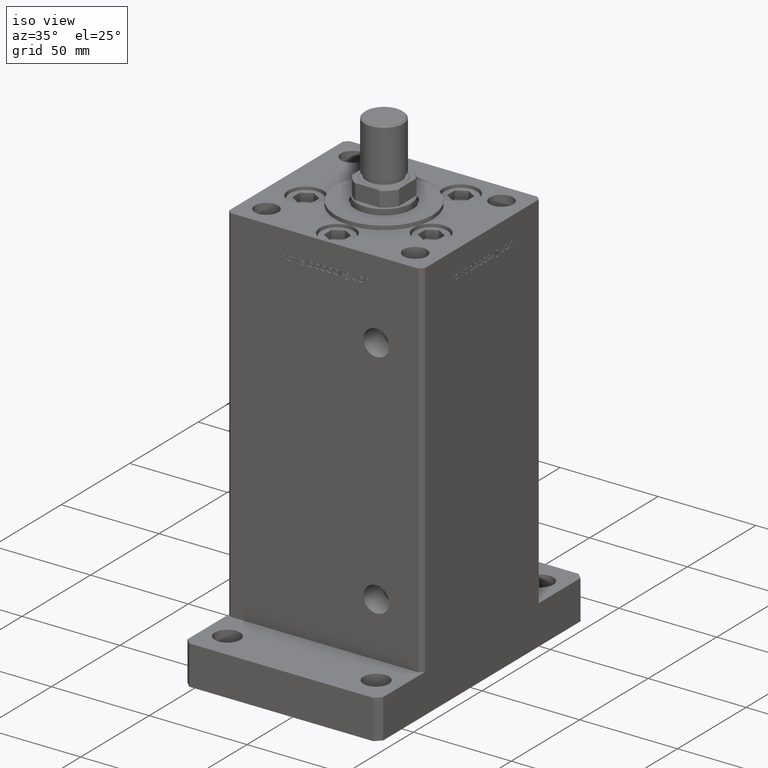
[diagram: clean part render]
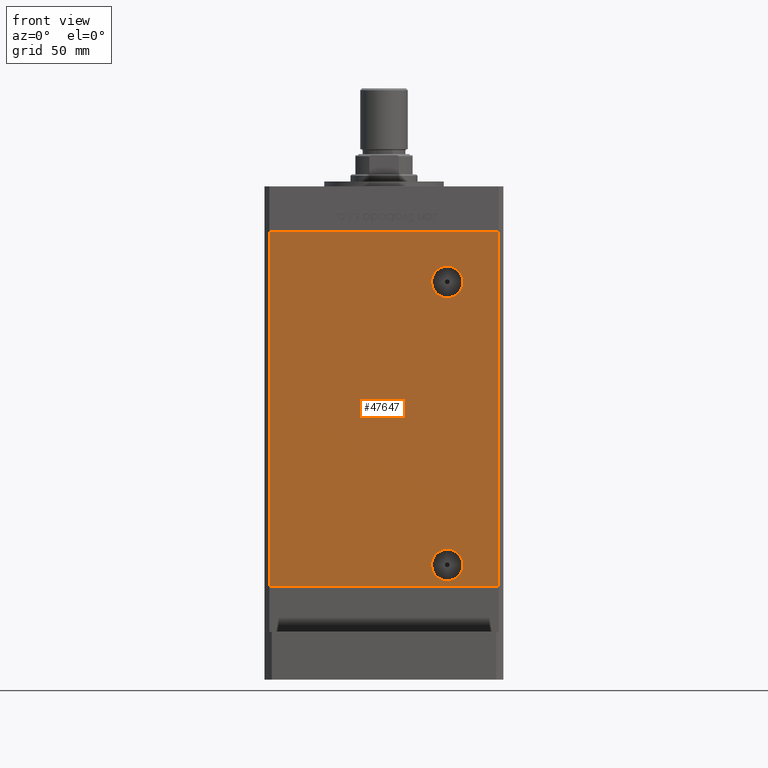
[diagram: tour spotlight — one face highlighted and labeled with its STEP entity id]
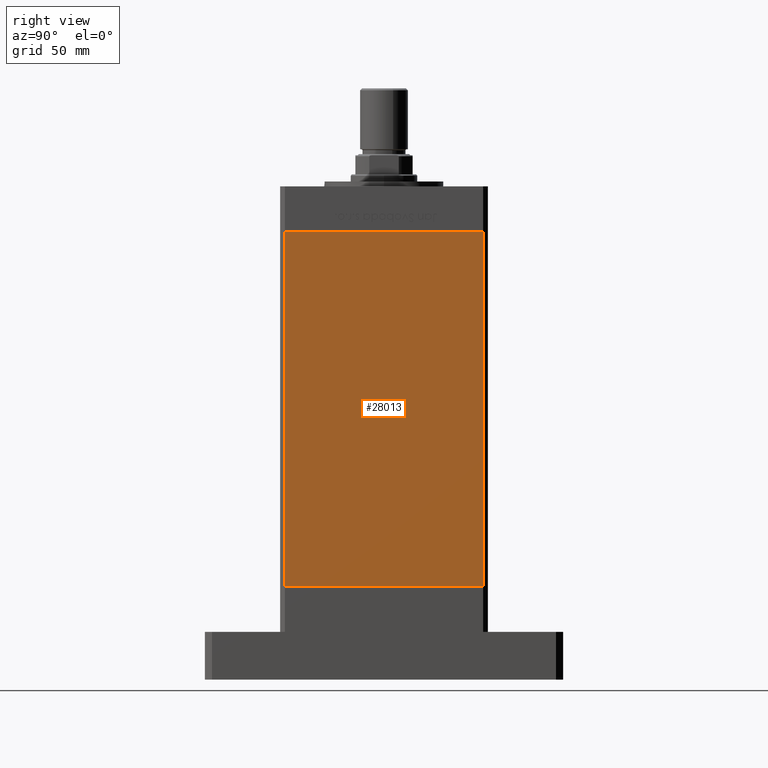
[diagram: tour spotlight — one face highlighted and labeled with its STEP entity id]
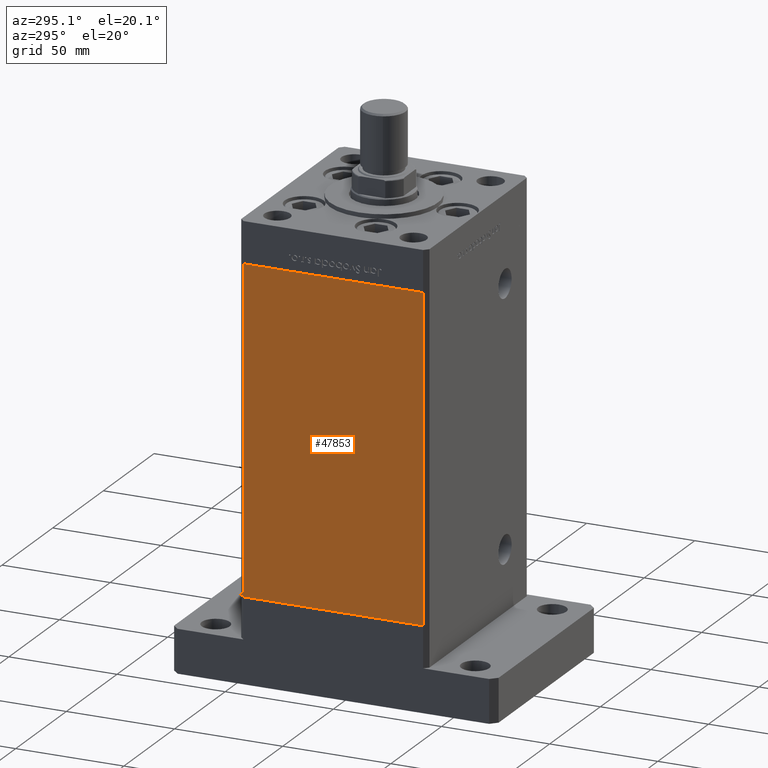
[diagram: tour spotlight — one face highlighted and labeled with its STEP entity id]
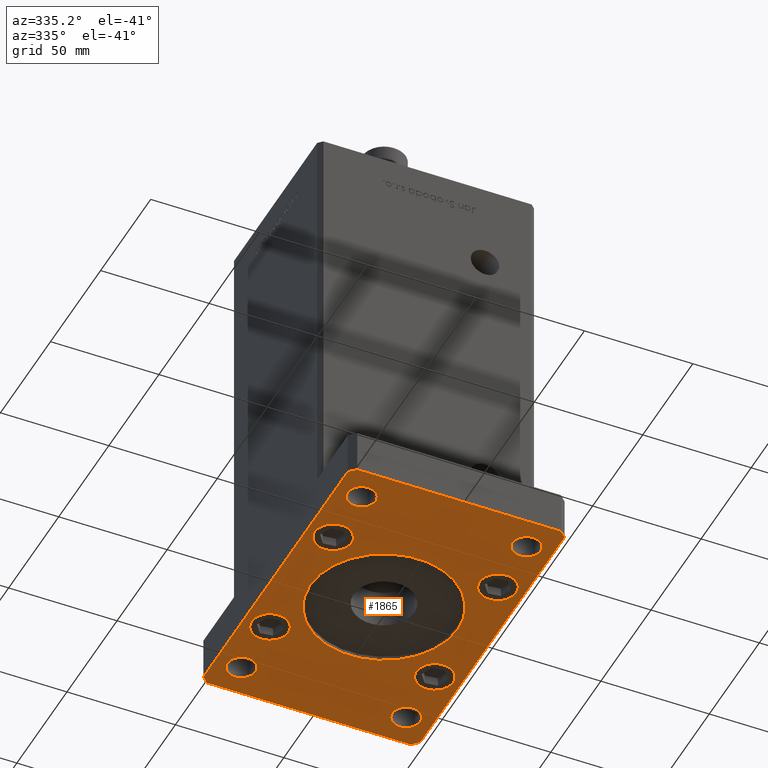
[diagram: tour spotlight — one face highlighted and labeled with its STEP entity id]
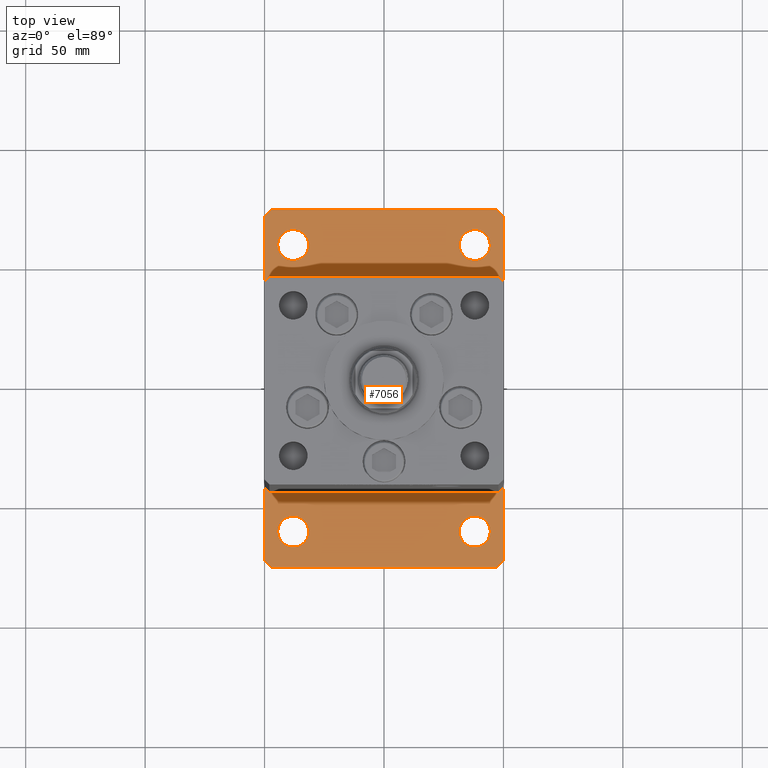
[diagram: tour spotlight — one face highlighted and labeled with its STEP entity id]
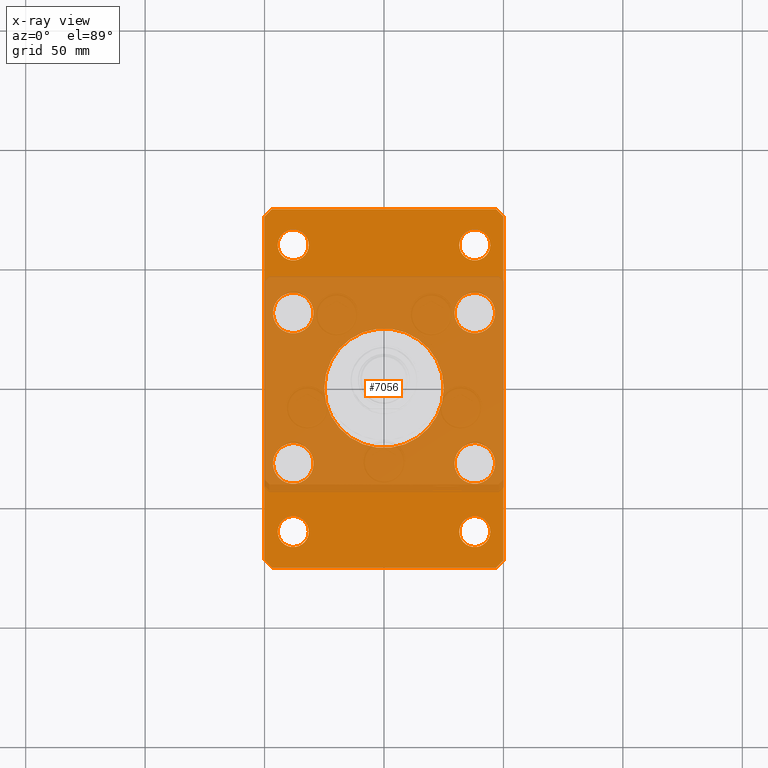
[diagram: x-ray of the same camera — body ghosted, this tour face saturated]
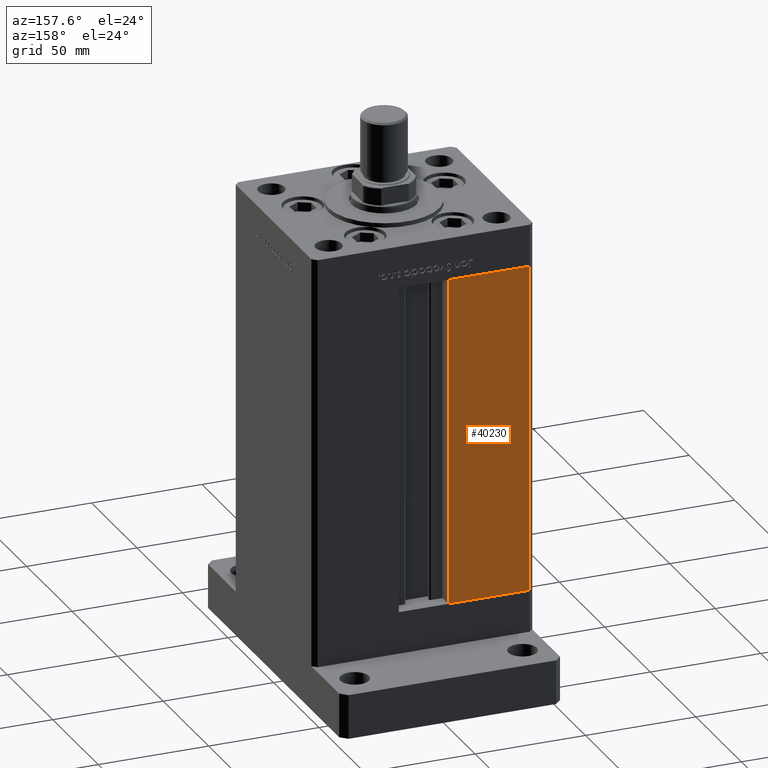
[diagram: tour spotlight — one face highlighted and labeled with its STEP entity id]
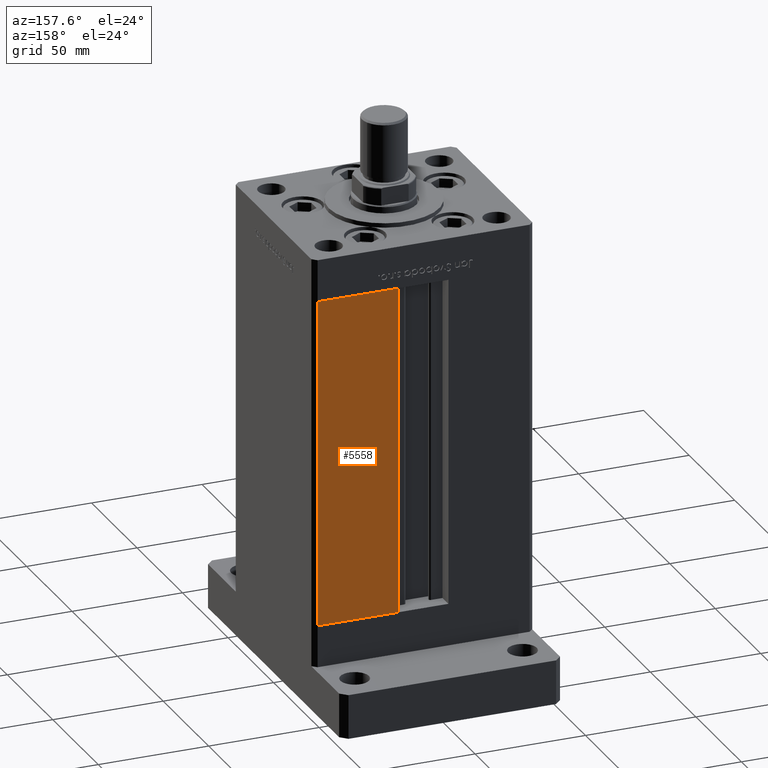
[diagram: tour spotlight — one face highlighted and labeled with its STEP entity id]
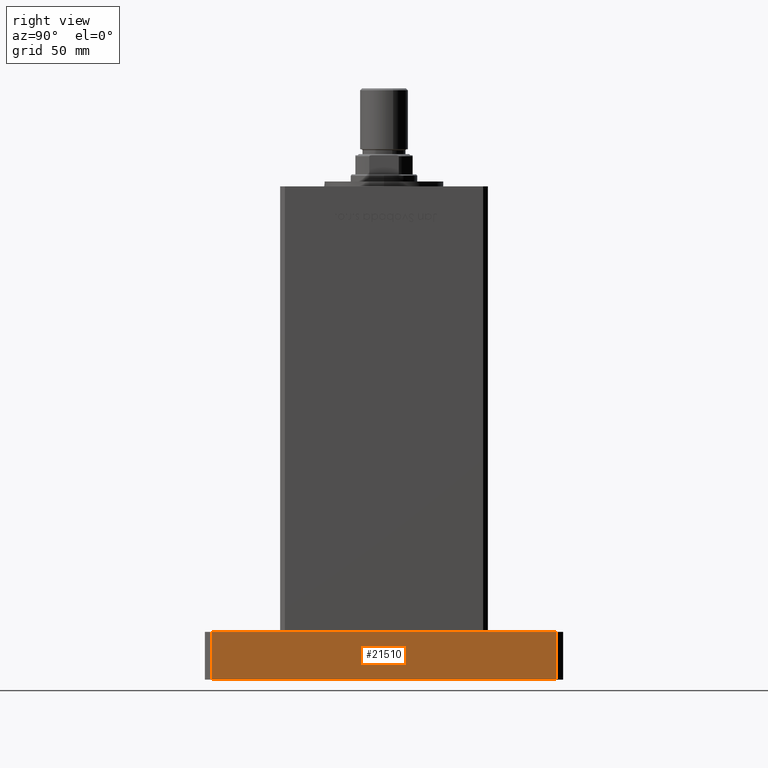
[diagram: tour spotlight — one face highlighted and labeled with its STEP entity id]
A machine part: a face-by-face anatomy tour. The part has 1324 B-rep faces; the first image is the clean iso view, then the 8 largest visible faces are spotlighted one at a time (largest first), each with its STEP entity span.

Face 1 — front view, entity #47647. In plain terms, the highlighted planar face has unit normal (0, 1, 0).
Definition (entity closure, byte-faithful):
#298 = ORIENTED_EDGE ( 'NONE', *, *, #14466, .T. ) ;
#888 = ORIENTED_EDGE ( 'NONE', *, *, #22446, .T. ) ;
#4269 = DIRECTION ( 'NONE',  ( 0.000000000000000000, -0.000000000000000000, 1.000000000000000000 ) ) ;
#4536 = FACE_BOUND ( 'NONE', #36907, .T. ) ;
#5192 = CARTESIAN_POINT ( 'NONE',  ( 47.99999999999998579, -43.50000000000000000, 148.5000000000000000 ) ) ;
#6869 = CARTESIAN_POINT ( 'NONE',  ( -47.99999999999998579, -43.50000000000000000, 148.5000000000000000 ) ) ;
#8387 = CIRCLE ( 'NONE', #52949, 6.579999999999988525 ) ;
#10286 = CIRCLE ( 'NONE', #23391, 6.579999999999994742 ) ;
#11082 = LINE ( 'NONE', #48291, #11175 ) ;
#11175 = VECTOR ( 'NONE', #31338, 1000.000000000000000 ) ;
#12497 = DIRECTION ( 'NONE',  ( 0.000000000000000000, 1.000000000000000000, 0.000000000000000000 ) ) ;
#13271 = ORIENTED_EDGE ( 'NONE', *, *, #18501, .T. ) ;
#13607 = CARTESIAN_POINT ( 'NONE',  ( 26.49999999999998934, -43.50000000000000000, 2.420000000000013252 ) ) ;
#13742 = EDGE_CURVE ( 'NONE', #50945, #51416, #10286, .T. ) ;
#14466 = EDGE_CURVE ( 'NONE', #50347, #42426, #11082, .T. ) ;
#16244 = CARTESIAN_POINT ( 'NONE',  ( 26.49999999999998934, -43.50000000000000000, 9.000000000000007105 ) ) ;
#16719 = VECTOR ( 'NONE', #33133, 1000.000000000000000 ) ;
#17182 = LINE ( 'NONE', #22093, #30983 ) ;
#17514 = DIRECTION ( 'NONE',  ( 1.000000000000000000, 0.000000000000000000, 0.000000000000000000 ) ) ;
#17885 = ORIENTED_EDGE ( 'NONE', *, *, #36052, .F. ) ;
#18130 = DIRECTION ( 'NONE',  ( 0.000000000000000000, 0.000000000000000000, -1.000000000000000000 ) ) ;
#18276 = DIRECTION ( 'NONE',  ( -0.000000000000000000, 1.000000000000000000, -0.000000000000000000 ) ) ;
#18501 = EDGE_CURVE ( 'NONE', #32899, #44856, #24727, .T. ) ;
#20613 = DIRECTION ( 'NONE',  ( 0.000000000000000000, -1.000000000000000000, 0.000000000000000000 ) ) ;
#20769 = AXIS2_PLACEMENT_3D ( 'NONE', #16244, #20613, #33467 ) ;
#22093 = CARTESIAN_POINT ( 'NONE',  ( -47.99999999999998579, -43.50000000000000000, 148.5000000000000000 ) ) ;
#22446 = EDGE_CURVE ( 'NONE', #35582, #50347, #17182, .T. ) ;
#22727 = ORIENTED_EDGE ( 'NONE', *, *, #45059, .F. ) ;
#23391 = AXIS2_PLACEMENT_3D ( 'NONE', #26055, #47937, #18130 ) ;
#24727 = CIRCLE ( 'NONE', #38738, 6.579999999999988525 ) ;
#25434 = LINE ( 'NONE', #50590, #48637 ) ;
#25609 = CARTESIAN_POINT ( 'NONE',  ( 47.99999999999998579, -43.50000000000000000, 0.000000000000000000 ) ) ;
#26055 = CARTESIAN_POINT ( 'NONE',  ( 26.49999999999998934, -43.50000000000000000, 9.000000000000007105 ) ) ;
#26467 = DIRECTION ( 'NONE',  ( 0.000000000000000000, 0.000000000000000000, -1.000000000000000000 ) ) ;
#27143 = AXIS2_PLACEMENT_3D ( 'NONE', #45617, #12497, #4269 ) ;
#28859 = EDGE_CURVE ( 'NONE', #35582, #32017, #25434, .T. ) ;
#29229 = ORIENTED_EDGE ( 'NONE', *, *, #31337, .T. ) ;
#29991 = FACE_BOUND ( 'NONE', #44337, .T. ) ;
#30142 = CARTESIAN_POINT ( 'NONE',  ( 26.49999999999998934, -43.50000000000000000, 15.58000000000000362 ) ) ;
#30576 = DIRECTION ( 'NONE',  ( -0.000000000000000000, -0.000000000000000000, -1.000000000000000000 ) ) ;
#30858 = CARTESIAN_POINT ( 'NONE',  ( 26.49999999999997513, -43.50000000000000000, 120.9200000000000159 ) ) ;
#30943 = CARTESIAN_POINT ( 'NONE',  ( -47.99999999999998579, -43.50000000000000000, 0.000000000000000000 ) ) ;
#30983 = VECTOR ( 'NONE', #30576, 1000.000000000000000 ) ;
#31287 = CIRCLE ( 'NONE', #20769, 6.579999999999994742 ) ;
#31337 = EDGE_CURVE ( 'NONE', #44856, #32899, #8387, .T. ) ;
#31338 = DIRECTION ( 'NONE',  ( 1.000000000000000000, 0.000000000000000000, 0.000000000000000000 ) ) ;
#32017 = VERTEX_POINT ( 'NONE', #53849 ) ;
#32594 = ORIENTED_EDGE ( 'NONE', *, *, #28859, .F. ) ;
#32899 = VERTEX_POINT ( 'NONE', #30858 ) ;
#33133 = DIRECTION ( 'NONE',  ( -0.000000000000000000, -0.000000000000000000, -1.000000000000000000 ) ) ;
#33467 = DIRECTION ( 'NONE',  ( 0.000000000000000000, 0.000000000000000000, -1.000000000000000000 ) ) ;
#34708 = ORIENTED_EDGE ( 'NONE', *, *, #13742, .F. ) ;
#34962 = CARTESIAN_POINT ( 'NONE',  ( 26.49999999999997513, -43.50000000000000000, 127.5000000000000000 ) ) ;
#35230 = DIRECTION ( 'NONE',  ( -0.000000000000000000, 1.000000000000000000, -0.000000000000000000 ) ) ;
#35582 = VERTEX_POINT ( 'NONE', #6869 ) ;
#36052 = EDGE_CURVE ( 'NONE', #51416, #50945, #31287, .T. ) ;
#36907 = EDGE_LOOP ( 'NONE', ( #13271, #29229 ) ) ;
#38222 = FACE_OUTER_BOUND ( 'NONE', #41356, .T. ) ;
#38738 = AXIS2_PLACEMENT_3D ( 'NONE', #42354, #18276, #26467 ) ;
#41356 = EDGE_LOOP ( 'NONE', ( #298, #22727, #32594, #888 ) ) ;
#42354 = CARTESIAN_POINT ( 'NONE',  ( 26.49999999999997513, -43.50000000000000000, 127.5000000000000000 ) ) ;
#42426 = VERTEX_POINT ( 'NONE', #25609 ) ;
#42697 = LINE ( 'NONE', #5192, #16719 ) ;
#44337 = EDGE_LOOP ( 'NONE', ( #17885, #34708 ) ) ;
#44856 = VERTEX_POINT ( 'NONE', #49272 ) ;
#45059 = EDGE_CURVE ( 'NONE', #32017, #42426, #42697, .T. ) ;
#45617 = CARTESIAN_POINT ( 'NONE',  ( -47.99999999999998579, -43.50000000000000000, 148.5000000000000000 ) ) ;
#47647 = ADVANCED_FACE ( 'NONE', ( #29991, #38222, #4536 ), #49965, .F. ) ;
#47937 = DIRECTION ( 'NONE',  ( 0.000000000000000000, -1.000000000000000000, 0.000000000000000000 ) ) ;
#48291 = CARTESIAN_POINT ( 'NONE',  ( -47.99999999999998579, -43.50000000000000000, 0.000000000000000000 ) ) ;
#48637 = VECTOR ( 'NONE', #17514, 1000.000000000000000 ) ;
#49272 = CARTESIAN_POINT ( 'NONE',  ( 26.49999999999997513, -43.50000000000000000, 134.0800000000000125 ) ) ;
#49965 = PLANE ( 'NONE',  #27143 ) ;
#50347 = VERTEX_POINT ( 'NONE', #30943 ) ;
#50590 = CARTESIAN_POINT ( 'NONE',  ( -47.99999999999998579, -43.50000000000000000, 148.5000000000000000 ) ) ;
#50945 = VERTEX_POINT ( 'NONE', #30142 ) ;
#51349 = DIRECTION ( 'NONE',  ( 0.000000000000000000, 0.000000000000000000, -1.000000000000000000 ) ) ;
#51416 = VERTEX_POINT ( 'NONE', #13607 ) ;
#52949 = AXIS2_PLACEMENT_3D ( 'NONE', #34962, #35230, #51349 ) ;
#53849 = CARTESIAN_POINT ( 'NONE',  ( 47.99999999999998579, -43.50000000000000000, 148.5000000000000000 ) ) ;

Face 2 — right view, entity #28013. In plain terms, the highlighted planar face has unit normal (1, -0, 0).
Definition (entity closure, byte-faithful):
#180 = ORIENTED_EDGE ( 'NONE', *, *, #35379, .T. ) ;
#3867 = CARTESIAN_POINT ( 'NONE',  ( 49.99999999999998579, -41.49999999999999289, 148.5000000000000000 ) ) ;
#5135 = VERTEX_POINT ( 'NONE', #6019 ) ;
#6019 = CARTESIAN_POINT ( 'NONE',  ( 50.00000000000001421, 41.49999999999999289, 148.5000000000000000 ) ) ;
#6929 = DIRECTION ( 'NONE',  ( -0.000000000000000000, -0.000000000000000000, -1.000000000000000000 ) ) ;
#7373 = EDGE_LOOP ( 'NONE', ( #51113, #23256, #45754, #180 ) ) ;
#8895 = CARTESIAN_POINT ( 'NONE',  ( 50.00000000000001421, 41.49999999999999289, 148.5000000000000000 ) ) ;
#11969 = VERTEX_POINT ( 'NONE', #48121 ) ;
#13004 = LINE ( 'NONE', #8895, #15785 ) ;
#14039 = VERTEX_POINT ( 'NONE', #40710 ) ;
#14890 = CARTESIAN_POINT ( 'NONE',  ( 50.00000000000001421, 41.49999999999999289, 148.5000000000000000 ) ) ;
#15343 = FACE_OUTER_BOUND ( 'NONE', #7373, .T. ) ;
#15785 = VECTOR ( 'NONE', #37644, 1000.000000000000000 ) ;
#18912 = DIRECTION ( 'NONE',  ( 1.000000000000000000, -3.344045254895050480E-16, 0.000000000000000000 ) ) ;
#20628 = AXIS2_PLACEMENT_3D ( 'NONE', #23812, #18912, #23011 ) ;
#21335 = EDGE_CURVE ( 'NONE', #5135, #11969, #52613, .T. ) ;
#23011 = DIRECTION ( 'NONE',  ( 3.344045254895050480E-16, 1.000000000000000000, 0.000000000000000000 ) ) ;
#23256 = ORIENTED_EDGE ( 'NONE', *, *, #21335, .F. ) ;
#23812 = CARTESIAN_POINT ( 'NONE',  ( 50.00000000000001421, 41.49999999999999289, 148.5000000000000000 ) ) ;
#27737 = LINE ( 'NONE', #44437, #53929 ) ;
#28013 = ADVANCED_FACE ( 'NONE', ( #15343 ), #44625, .T. ) ;
#34621 = VERTEX_POINT ( 'NONE', #3867 ) ;
#34994 = CARTESIAN_POINT ( 'NONE',  ( 50.00000000000001421, 41.49999999999999289, 0.000000000000000000 ) ) ;
#35379 = EDGE_CURVE ( 'NONE', #34621, #14039, #27737, .T. ) ;
#37608 = VECTOR ( 'NONE', #38829, 1000.000000000000000 ) ;
#37644 = DIRECTION ( 'NONE',  ( -3.344045254895050973E-16, -1.000000000000000000, 0.000000000000000000 ) ) ;
#38829 = DIRECTION ( 'NONE',  ( -3.344045254895050973E-16, -1.000000000000000000, 0.000000000000000000 ) ) ;
#40329 = DIRECTION ( 'NONE',  ( -0.000000000000000000, -0.000000000000000000, -1.000000000000000000 ) ) ;
#40710 = CARTESIAN_POINT ( 'NONE',  ( 49.99999999999998579, -41.49999999999999289, 0.000000000000000000 ) ) ;
#44378 = EDGE_CURVE ( 'NONE', #5135, #34621, #13004, .T. ) ;
#44437 = CARTESIAN_POINT ( 'NONE',  ( 49.99999999999998579, -41.49999999999999289, 148.5000000000000000 ) ) ;
#44625 = PLANE ( 'NONE',  #20628 ) ;
#45754 = ORIENTED_EDGE ( 'NONE', *, *, #44378, .T. ) ;
#47410 = EDGE_CURVE ( 'NONE', #11969, #14039, #48107, .T. ) ;
#48107 = LINE ( 'NONE', #34994, #37608 ) ;
#48121 = CARTESIAN_POINT ( 'NONE',  ( 50.00000000000001421, 41.49999999999999289, 0.000000000000000000 ) ) ;
#49292 = VECTOR ( 'NONE', #6929, 1000.000000000000000 ) ;
#51113 = ORIENTED_EDGE ( 'NONE', *, *, #47410, .F. ) ;
#52613 = LINE ( 'NONE', #14890, #49292 ) ;
#53929 = VECTOR ( 'NONE', #40329, 1000.000000000000000 ) ;

Face 3 — auxiliary view, entity #47853. In plain terms, the highlighted planar face has unit normal (1, 0, 0).
Definition (entity closure, byte-faithful):
#1219 = DIRECTION ( 'NONE',  ( -0.000000000000000000, -0.000000000000000000, -1.000000000000000000 ) ) ;
#2322 = CARTESIAN_POINT ( 'NONE',  ( -50.00000000000001421, 41.49999999999999289, 148.5000000000000000 ) ) ;
#3494 = VECTOR ( 'NONE', #38242, 1000.000000000000000 ) ;
#4088 = CARTESIAN_POINT ( 'NONE',  ( -50.00000000000001421, 41.49999999999999289, 148.5000000000000000 ) ) ;
#6265 = VERTEX_POINT ( 'NONE', #10969 ) ;
#6982 = VERTEX_POINT ( 'NONE', #10778 ) ;
#10012 = LINE ( 'NONE', #43126, #38096 ) ;
#10778 = CARTESIAN_POINT ( 'NONE',  ( -49.99999999999998579, -41.49999999999999289, 0.000000000000000000 ) ) ;
#10969 = CARTESIAN_POINT ( 'NONE',  ( -50.00000000000001421, 41.49999999999999289, 0.000000000000000000 ) ) ;
#11366 = DIRECTION ( 'NONE',  ( 1.000000000000000000, 3.344045254895050480E-16, -0.000000000000000000 ) ) ;
#14385 = CARTESIAN_POINT ( 'NONE',  ( -49.99999999999998579, -41.49999999999999289, 148.5000000000000000 ) ) ;
#15329 = EDGE_CURVE ( 'NONE', #51104, #33220, #52184, .T. ) ;
#21374 = CARTESIAN_POINT ( 'NONE',  ( -49.99999999999998579, -41.49999999999999289, 148.5000000000000000 ) ) ;
#26850 = ORIENTED_EDGE ( 'NONE', *, *, #27283, .F. ) ;
#27182 = EDGE_CURVE ( 'NONE', #6265, #6982, #10012, .T. ) ;
#27247 = DIRECTION ( 'NONE',  ( -3.344045254895050480E-16, 1.000000000000000000, 0.000000000000000000 ) ) ;
#27283 = EDGE_CURVE ( 'NONE', #33220, #6982, #39293, .T. ) ;
#27406 = EDGE_LOOP ( 'NONE', ( #51759, #26850, #36036, #28229 ) ) ;
#28229 = ORIENTED_EDGE ( 'NONE', *, *, #51444, .T. ) ;
#30288 = LINE ( 'NONE', #46169, #3494 ) ;
#30324 = DIRECTION ( 'NONE',  ( 3.344045254895050973E-16, -1.000000000000000000, 0.000000000000000000 ) ) ;
#31140 = VECTOR ( 'NONE', #1219, 1000.000000000000000 ) ;
#31881 = PLANE ( 'NONE',  #48116 ) ;
#33220 = VERTEX_POINT ( 'NONE', #21374 ) ;
#36036 = ORIENTED_EDGE ( 'NONE', *, *, #15329, .F. ) ;
#38096 = VECTOR ( 'NONE', #39019, 1000.000000000000000 ) ;
#38242 = DIRECTION ( 'NONE',  ( -0.000000000000000000, -0.000000000000000000, -1.000000000000000000 ) ) ;
#39019 = DIRECTION ( 'NONE',  ( 3.344045254895050973E-16, -1.000000000000000000, 0.000000000000000000 ) ) ;
#39293 = LINE ( 'NONE', #14385, #31140 ) ;
#39839 = FACE_OUTER_BOUND ( 'NONE', #27406, .T. ) ;
#43126 = CARTESIAN_POINT ( 'NONE',  ( -50.00000000000001421, 41.49999999999999289, 0.000000000000000000 ) ) ;
#46169 = CARTESIAN_POINT ( 'NONE',  ( -50.00000000000001421, 41.49999999999999289, 148.5000000000000000 ) ) ;
#47853 = ADVANCED_FACE ( 'NONE', ( #39839 ), #31881, .F. ) ;
#48116 = AXIS2_PLACEMENT_3D ( 'NONE', #2322, #11366, #27247 ) ;
#48774 = VECTOR ( 'NONE', #30324, 1000.000000000000000 ) ;
#51099 = CARTESIAN_POINT ( 'NONE',  ( -50.00000000000001421, 41.49999999999999289, 148.5000000000000000 ) ) ;
#51104 = VERTEX_POINT ( 'NONE', #4088 ) ;
#51444 = EDGE_CURVE ( 'NONE', #51104, #6265, #30288, .T. ) ;
#51759 = ORIENTED_EDGE ( 'NONE', *, *, #27182, .T. ) ;
#52184 = LINE ( 'NONE', #51099, #48774 ) ;

Face 4 — auxiliary view, entity #1865. In plain terms, the highlighted planar face has unit normal (0, 0, 1).
Definition (entity closure, byte-faithful):
#70 = CARTESIAN_POINT ( 'NONE',  ( 47.00000000000002132, 75.00000000000002842, 0.000000000000000000 ) ) ;
#86 = DIRECTION ( 'NONE',  ( 0.7071067811865459074, 0.7071067811865491270, 0.000000000000000000 ) ) ;
#356 = PLANE ( 'NONE',  #42376 ) ;
#516 = EDGE_CURVE ( 'NONE', #52397, #14181, #50162, .T. ) ;
#866 = AXIS2_PLACEMENT_3D ( 'NONE', #3532, #16410, #20245 ) ;
#1080 = EDGE_CURVE ( 'NONE', #41978, #36396, #38842, .T. ) ;
#1151 = EDGE_CURVE ( 'NONE', #10855, #10576, #29930, .T. ) ;
#1191 = AXIS2_PLACEMENT_3D ( 'NONE', #50735, #9439, #38991 ) ;
#1272 = CARTESIAN_POINT ( 'NONE',  ( 37.99999999999999289, 31.49999999999999289, 0.000000000000000000 ) ) ;
#1317 = DIRECTION ( 'NONE',  ( 0.000000000000000000, 0.000000000000000000, 1.000000000000000000 ) ) ;
#1447 = EDGE_LOOP ( 'NONE', ( #12639, #33610 ) ) ;
#1865 = ADVANCED_FACE ( 'NONE', ( #20128, #29670, #33248, #37897, #45300, #49660, #37632, #24495, #41740, #46370 ), #356, .F. ) ;
#2055 = DIRECTION ( 'NONE',  ( 1.000000000000000000, 1.181088324069315250E-15, 0.000000000000000000 ) ) ;
#2423 = CARTESIAN_POINT ( 'NONE',  ( -50.00000000000001421, 72.00000000000000000, 0.000000000000000000 ) ) ;
#3108 = DIRECTION ( 'NONE',  ( 1.000000000000000000, 0.000000000000000000, 0.000000000000000000 ) ) ;
#3532 = CARTESIAN_POINT ( 'NONE',  ( -37.99999999999999289, 59.99999999999999289, 0.000000000000000000 ) ) ;
#3731 = AXIS2_PLACEMENT_3D ( 'NONE', #1272, #31122, #27287 ) ;
#3777 = CIRCLE ( 'NONE', #34388, 8.499999999999992895 ) ;
#4414 = DIRECTION ( 'NONE',  ( 0.000000000000000000, 0.000000000000000000, 1.000000000000000000 ) ) ;
#4491 = CARTESIAN_POINT ( 'NONE',  ( 0.000000000000000000, 0.000000000000000000, 0.000000000000000000 ) ) ;
#4752 = EDGE_CURVE ( 'NONE', #33032, #21099, #50674, .T. ) ;
#4953 = EDGE_CURVE ( 'NONE', #36396, #41978, #25851, .T. ) ;
#5068 = VECTOR ( 'NONE', #12937, 999.9999999999998863 ) ;
#5281 = EDGE_CURVE ( 'NONE', #10576, #41851, #42098, .T. ) ;
#5525 = ORIENTED_EDGE ( 'NONE', *, *, #20634, .T. ) ;
#5815 = CIRCLE ( 'NONE', #46874, 6.499999999999999112 ) ;
#6128 = CIRCLE ( 'NONE', #866, 6.499999999999999112 ) ;
#7126 = DIRECTION ( 'NONE',  ( 1.000000000000000000, 0.000000000000000000, 0.000000000000000000 ) ) ;
#7569 = CARTESIAN_POINT ( 'NONE',  ( -31.49999999999997868, -60.00000000000000711, 0.000000000000000000 ) ) ;
#7653 = AXIS2_PLACEMENT_3D ( 'NONE', #34599, #9971, #30490 ) ;
#8472 = AXIS2_PLACEMENT_3D ( 'NONE', #50374, #4414, #46290 ) ;
#8880 = LINE ( 'NONE', #38170, #39302 ) ;
#9257 = VECTOR ( 'NONE', #11738, 1000.000000000000000 ) ;
#9318 = CARTESIAN_POINT ( 'NONE',  ( -37.99999999999997868, -60.00000000000000711, 0.000000000000000000 ) ) ;
#9402 = CARTESIAN_POINT ( 'NONE',  ( -44.49999999999999289, 59.99999999999999289, 0.000000000000000000 ) ) ;
#9439 = DIRECTION ( 'NONE',  ( 0.000000000000000000, 0.000000000000000000, 1.000000000000000000 ) ) ;
#9897 = ORIENTED_EDGE ( 'NONE', *, *, #1151, .F. ) ;
#9901 = CIRCLE ( 'NONE', #3731, 8.499999999999992895 ) ;
#9971 = DIRECTION ( 'NONE',  ( 0.000000000000000000, 0.000000000000000000, 1.000000000000000000 ) ) ;
#10174 = EDGE_CURVE ( 'NONE', #21042, #38656, #25134, .T. ) ;
#10576 = VERTEX_POINT ( 'NONE', #2423 ) ;
#10855 = VERTEX_POINT ( 'NONE', #32182 ) ;
#11232 = DIRECTION ( 'NONE',  ( 1.000000000000000000, 0.000000000000000000, 0.000000000000000000 ) ) ;
#11240 = CARTESIAN_POINT ( 'NONE',  ( -38.00000000000000711, 31.50000000000000000, 0.000000000000000000 ) ) ;
#11275 = EDGE_CURVE ( 'NONE', #21099, #16684, #33729, .T. ) ;
#11280 = EDGE_CURVE ( 'NONE', #48782, #48642, #42658, .T. ) ;
#11501 = CARTESIAN_POINT ( 'NONE',  ( -37.99999999999997868, -60.00000000000000711, 0.000000000000000000 ) ) ;
#11738 = DIRECTION ( 'NONE',  ( 1.927470528863118802E-16, -1.000000000000000000, 0.000000000000000000 ) ) ;
#12639 = ORIENTED_EDGE ( 'NONE', *, *, #27949, .T. ) ;
#12937 = DIRECTION ( 'NONE',  ( -0.7071067811865435759, 0.7071067811865515695, 0.000000000000000000 ) ) ;
#13948 = DIRECTION ( 'NONE',  ( 1.000000000000000000, 0.000000000000000000, 0.000000000000000000 ) ) ;
#14181 = VERTEX_POINT ( 'NONE', #7569 ) ;
#14287 = CARTESIAN_POINT ( 'NONE',  ( 47.00000000000001421, -74.99999999999988631, 0.000000000000000000 ) ) ;
#14358 = CARTESIAN_POINT ( 'NONE',  ( 44.49999999999997868, -60.00000000000000711, 0.000000000000000000 ) ) ;
#15178 = EDGE_LOOP ( 'NONE', ( #22774, #40920 ) ) ;
#15231 = ORIENTED_EDGE ( 'NONE', *, *, #11275, .F. ) ;
#15249 = AXIS2_PLACEMENT_3D ( 'NONE', #20647, #16281, #24216 ) ;
#15353 = AXIS2_PLACEMENT_3D ( 'NONE', #44117, #40815, #23567 ) ;
#16108 = CIRCLE ( 'NONE', #31016, 6.499999999999999112 ) ;
#16235 = DIRECTION ( 'NONE',  ( 0.000000000000000000, 0.000000000000000000, 1.000000000000000000 ) ) ;
#16281 = DIRECTION ( 'NONE',  ( 0.000000000000000000, 0.000000000000000000, 1.000000000000000000 ) ) ;
#16291 = CARTESIAN_POINT ( 'NONE',  ( 47.00000000000001421, -74.99999999999988631, 0.000000000000000000 ) ) ;
#16410 = DIRECTION ( 'NONE',  ( 0.000000000000000000, 0.000000000000000000, 1.000000000000000000 ) ) ;
#16684 = VERTEX_POINT ( 'NONE', #70 ) ;
#16686 = CARTESIAN_POINT ( 'NONE',  ( 38.00000000000000000, 59.99999999999998579, 0.000000000000000000 ) ) ;
#16725 = DIRECTION ( 'NONE',  ( 1.000000000000000000, 0.000000000000000000, 0.000000000000000000 ) ) ;
#16941 = CARTESIAN_POINT ( 'NONE',  ( -46.50000000000000711, -31.50000000000000000, 0.000000000000000000 ) ) ;
#17083 = CARTESIAN_POINT ( 'NONE',  ( -47.00000000000002842, 75.00000000000002842, 0.000000000000000000 ) ) ;
#17161 = DIRECTION ( 'NONE',  ( -1.000000000000000000, 0.000000000000000000, 0.000000000000000000 ) ) ;
#17756 = EDGE_CURVE ( 'NONE', #16684, #10855, #31112, .T. ) ;
#18028 = AXIS2_PLACEMENT_3D ( 'NONE', #11240, #19449, #7126 ) ;
#18113 = ORIENTED_EDGE ( 'NONE', *, *, #19519, .F. ) ;
#18623 = EDGE_CURVE ( 'NONE', #52264, #30419, #9901, .T. ) ;
#18843 = DIRECTION ( 'NONE',  ( 0.000000000000000000, 0.000000000000000000, 1.000000000000000000 ) ) ;
#19449 = DIRECTION ( 'NONE',  ( 0.000000000000000000, 0.000000000000000000, 1.000000000000000000 ) ) ;
#19519 = EDGE_CURVE ( 'NONE', #27415, #28285, #53542, .T. ) ;
#19762 = EDGE_LOOP ( 'NONE', ( #43795, #42692 ) ) ;
#20128 = FACE_BOUND ( 'NONE', #47434, .T. ) ;
#20245 = DIRECTION ( 'NONE',  ( 1.000000000000000000, 0.000000000000000000, 0.000000000000000000 ) ) ;
#20337 = CARTESIAN_POINT ( 'NONE',  ( 37.99999999999999289, -31.49999999999999289, 0.000000000000000000 ) ) ;
#20498 = AXIS2_PLACEMENT_3D ( 'NONE', #11501, #28175, #11232 ) ;
#20634 = EDGE_CURVE ( 'NONE', #48642, #48782, #3777, .T. ) ;
#20647 = CARTESIAN_POINT ( 'NONE',  ( -38.00000000000000711, -31.50000000000000000, 0.000000000000000000 ) ) ;
#21042 = VERTEX_POINT ( 'NONE', #36556 ) ;
#21099 = VERTEX_POINT ( 'NONE', #28060 ) ;
#21105 = ORIENTED_EDGE ( 'NONE', *, *, #50419, .T. ) ;
#21148 = VERTEX_POINT ( 'NONE', #28864 ) ;
#21583 = ORIENTED_EDGE ( 'NONE', *, *, #1080, .T. ) ;
#21956 = EDGE_CURVE ( 'NONE', #51922, #27467, #24795, .T. ) ;
#22220 = CARTESIAN_POINT ( 'NONE',  ( -47.00000000000000000, -75.00000000000000000, 0.000000000000000000 ) ) ;
#22251 = VERTEX_POINT ( 'NONE', #22220 ) ;
#22651 = DIRECTION ( 'NONE',  ( 0.000000000000000000, 0.000000000000000000, 1.000000000000000000 ) ) ;
#22671 = CARTESIAN_POINT ( 'NONE',  ( 37.99999999999997868, -60.00000000000000711, 0.000000000000000000 ) ) ;
#22774 = ORIENTED_EDGE ( 'NONE', *, *, #33540, .T. ) ;
#23118 = CARTESIAN_POINT ( 'NONE',  ( 31.49999999999997868, -60.00000000000000711, 0.000000000000000000 ) ) ;
#23293 = EDGE_CURVE ( 'NONE', #41790, #25010, #16108, .T. ) ;
#23413 = CARTESIAN_POINT ( 'NONE',  ( 29.49999999999999645, -31.49999999999999289, 0.000000000000000000 ) ) ;
#23567 = DIRECTION ( 'NONE',  ( 1.000000000000000000, 0.000000000000000000, 0.000000000000000000 ) ) ;
#24216 = DIRECTION ( 'NONE',  ( 1.000000000000000000, 0.000000000000000000, 0.000000000000000000 ) ) ;
#24495 = FACE_BOUND ( 'NONE', #50778, .T. ) ;
#24553 = AXIS2_PLACEMENT_3D ( 'NONE', #9318, #38061, #16725 ) ;
#24616 = DIRECTION ( 'NONE',  ( 1.000000000000000000, 0.000000000000000000, 0.000000000000000000 ) ) ;
#24795 = CIRCLE ( 'NONE', #1191, 6.499999999999999112 ) ;
#25010 = VERTEX_POINT ( 'NONE', #53233 ) ;
#25134 = CIRCLE ( 'NONE', #7653, 8.500000000000000000 ) ;
#25173 = EDGE_LOOP ( 'NONE', ( #5525, #26355 ) ) ;
#25623 = CARTESIAN_POINT ( 'NONE',  ( 0.000000000000000000, 0.000000000000000000, 0.000000000000000000 ) ) ;
#25851 = CIRCLE ( 'NONE', #15353, 8.500000000000000000 ) ;
#26210 = ORIENTED_EDGE ( 'NONE', *, *, #4752, .F. ) ;
#26355 = ORIENTED_EDGE ( 'NONE', *, *, #11280, .T. ) ;
#26512 = CARTESIAN_POINT ( 'NONE',  ( -34.00000000000000000, 0.000000000000000000, 0.000000000000000000 ) ) ;
#27228 = VECTOR ( 'NONE', #2055, 1000.000000000000000 ) ;
#27281 = CARTESIAN_POINT ( 'NONE',  ( 46.49999999999998579, 31.49999999999999289, 0.000000000000000000 ) ) ;
#27287 = DIRECTION ( 'NONE',  ( 1.000000000000000000, 0.000000000000000000, 0.000000000000000000 ) ) ;
#27415 = VERTEX_POINT ( 'NONE', #43937 ) ;
#27467 = VERTEX_POINT ( 'NONE', #23118 ) ;
#27949 = EDGE_CURVE ( 'NONE', #38656, #21042, #53815, .T. ) ;
#27970 = VECTOR ( 'NONE', #40405, 1000.000000000000000 ) ;
#28060 = CARTESIAN_POINT ( 'NONE',  ( 50.00000000000000000, 72.00000000000001421, 0.000000000000000000 ) ) ;
#28077 = CIRCLE ( 'NONE', #43806, 8.499999999999992895 ) ;
#28175 = DIRECTION ( 'NONE',  ( 0.000000000000000000, 0.000000000000000000, 1.000000000000000000 ) ) ;
#28285 = VERTEX_POINT ( 'NONE', #26512 ) ;
#28299 = EDGE_LOOP ( 'NONE', ( #51913, #44054, #42980, #9897, #41302, #15231, #26210, #31744 ) ) ;
#28813 = DIRECTION ( 'NONE',  ( 0.000000000000000000, 1.000000000000000000, 0.000000000000000000 ) ) ;
#28864 = CARTESIAN_POINT ( 'NONE',  ( 44.50000000000000000, 59.99999999999998579, 0.000000000000000000 ) ) ;
#29218 = DIRECTION ( 'NONE',  ( 0.000000000000000000, 0.000000000000000000, 1.000000000000000000 ) ) ;
#29615 = DIRECTION ( 'NONE',  ( 1.000000000000000000, 0.000000000000000000, 0.000000000000000000 ) ) ;
#29667 = DIRECTION ( 'NONE',  ( 0.7071067811865474617, -0.7071067811865474617, 0.000000000000000000 ) ) ;
#29670 = FACE_OUTER_BOUND ( 'NONE', #28299, .T. ) ;
#29930 = LINE ( 'NONE', #17083, #52787 ) ;
#29967 = AXIS2_PLACEMENT_3D ( 'NONE', #25623, #46976, #17161 ) ;
#30228 = ORIENTED_EDGE ( 'NONE', *, *, #4953, .T. ) ;
#30419 = VERTEX_POINT ( 'NONE', #37568 ) ;
#30490 = DIRECTION ( 'NONE',  ( 1.000000000000000000, 0.000000000000000000, 0.000000000000000000 ) ) ;
#30669 = VERTEX_POINT ( 'NONE', #14287 ) ;
#30927 = CARTESIAN_POINT ( 'NONE',  ( 0.000000000000000000, 0.000000000000000000, 0.000000000000000000 ) ) ;
#31016 = AXIS2_PLACEMENT_3D ( 'NONE', #37723, #29218, #36649 ) ;
#31112 = LINE ( 'NONE', #31649, #27970 ) ;
#31122 = DIRECTION ( 'NONE',  ( 0.000000000000000000, 0.000000000000000000, 1.000000000000000000 ) ) ;
#31586 = CARTESIAN_POINT ( 'NONE',  ( -44.49999999999997868, -60.00000000000000711, 0.000000000000000000 ) ) ;
#31649 = CARTESIAN_POINT ( 'NONE',  ( 47.00000000000002132, 75.00000000000002842, 0.000000000000000000 ) ) ;
#31744 = ORIENTED_EDGE ( 'NONE', *, *, #40498, .F. ) ;
#32070 = CIRCLE ( 'NONE', #8472, 6.499999999999999112 ) ;
#32182 = CARTESIAN_POINT ( 'NONE',  ( -47.00000000000002842, 75.00000000000002842, 0.000000000000000000 ) ) ;
#32927 = CARTESIAN_POINT ( 'NONE',  ( 50.00000000000000000, -71.99999999999988631, 0.000000000000000000 ) ) ;
#32972 = CARTESIAN_POINT ( 'NONE',  ( 46.49999999999998579, -31.49999999999999289, 0.000000000000000000 ) ) ;
#33032 = VERTEX_POINT ( 'NONE', #34920 ) ;
#33248 = FACE_BOUND ( 'NONE', #19762, .T. ) ;
#33540 = EDGE_CURVE ( 'NONE', #27467, #51922, #5815, .T. ) ;
#33610 = ORIENTED_EDGE ( 'NONE', *, *, #10174, .T. ) ;
#33729 = LINE ( 'NONE', #50396, #5068 ) ;
#33964 = CARTESIAN_POINT ( 'NONE',  ( -46.50000000000000711, 31.50000000000000000, 0.000000000000000000 ) ) ;
#34031 = CARTESIAN_POINT ( 'NONE',  ( -49.99999999999998579, -72.00000000000001421, 0.000000000000000000 ) ) ;
#34213 = AXIS2_PLACEMENT_3D ( 'NONE', #16686, #53884, #24616 ) ;
#34388 = AXIS2_PLACEMENT_3D ( 'NONE', #46768, #1317, #13948 ) ;
#34580 = ORIENTED_EDGE ( 'NONE', *, *, #42093, .T. ) ;
#34599 = CARTESIAN_POINT ( 'NONE',  ( -38.00000000000000711, 31.50000000000000000, 0.000000000000000000 ) ) ;
#34634 = EDGE_CURVE ( 'NONE', #21148, #41638, #32070, .T. ) ;
#34920 = CARTESIAN_POINT ( 'NONE',  ( 50.00000000000000000, -71.99999999999988631, 0.000000000000000000 ) ) ;
#35812 = DIRECTION ( 'NONE',  ( 1.000000000000000000, 0.000000000000000000, 0.000000000000000000 ) ) ;
#36396 = VERTEX_POINT ( 'NONE', #40283 ) ;
#36556 = CARTESIAN_POINT ( 'NONE',  ( -29.50000000000000711, 31.50000000000000000, 0.000000000000000000 ) ) ;
#36649 = DIRECTION ( 'NONE',  ( 1.000000000000000000, 0.000000000000000000, 0.000000000000000000 ) ) ;
#36830 = DIRECTION ( 'NONE',  ( 0.000000000000000000, 0.000000000000000000, 1.000000000000000000 ) ) ;
#37217 = EDGE_CURVE ( 'NONE', #28285, #27415, #37430, .T. ) ;
#37367 = DIRECTION ( 'NONE',  ( 1.000000000000000000, 0.000000000000000000, -0.000000000000000000 ) ) ;
#37430 = CIRCLE ( 'NONE', #43568, 34.00000000000000000 ) ;
#37568 = CARTESIAN_POINT ( 'NONE',  ( 29.49999999999999645, 31.49999999999999289, 0.000000000000000000 ) ) ;
#37632 = FACE_BOUND ( 'NONE', #25173, .T. ) ;
#37723 = CARTESIAN_POINT ( 'NONE',  ( -37.99999999999999289, 59.99999999999999289, 0.000000000000000000 ) ) ;
#37897 = FACE_BOUND ( 'NONE', #53646, .T. ) ;
#38061 = DIRECTION ( 'NONE',  ( 0.000000000000000000, 0.000000000000000000, 1.000000000000000000 ) ) ;
#38170 = CARTESIAN_POINT ( 'NONE',  ( -49.99999999999998579, -72.00000000000001421, 0.000000000000000000 ) ) ;
#38656 = VERTEX_POINT ( 'NONE', #33964 ) ;
#38842 = CIRCLE ( 'NONE', #15249, 8.500000000000000000 ) ;
#38991 = DIRECTION ( 'NONE',  ( 1.000000000000000000, 0.000000000000000000, 0.000000000000000000 ) ) ;
#39302 = VECTOR ( 'NONE', #29667, 1000.000000000000114 ) ;
#39464 = CIRCLE ( 'NONE', #34213, 6.499999999999999112 ) ;
#39574 = CARTESIAN_POINT ( 'NONE',  ( -47.00000000000000000, -75.00000000000000000, 0.000000000000000000 ) ) ;
#40283 = CARTESIAN_POINT ( 'NONE',  ( -29.50000000000000711, -31.50000000000000000, 0.000000000000000000 ) ) ;
#40405 = DIRECTION ( 'NONE',  ( -1.000000000000000000, 0.000000000000000000, 0.000000000000000000 ) ) ;
#40498 = EDGE_CURVE ( 'NONE', #30669, #33032, #53763, .T. ) ;
#40591 = EDGE_CURVE ( 'NONE', #41851, #22251, #8880, .T. ) ;
#40815 = DIRECTION ( 'NONE',  ( 0.000000000000000000, 0.000000000000000000, 1.000000000000000000 ) ) ;
#40820 = ORIENTED_EDGE ( 'NONE', *, *, #34634, .T. ) ;
#40920 = ORIENTED_EDGE ( 'NONE', *, *, #21956, .T. ) ;
#41302 = ORIENTED_EDGE ( 'NONE', *, *, #17756, .F. ) ;
#41638 = VERTEX_POINT ( 'NONE', #46407 ) ;
#41740 = FACE_BOUND ( 'NONE', #1447, .T. ) ;
#41790 = VERTEX_POINT ( 'NONE', #9402 ) ;
#41851 = VERTEX_POINT ( 'NONE', #34031 ) ;
#41978 = VERTEX_POINT ( 'NONE', #16941 ) ;
#42093 = EDGE_CURVE ( 'NONE', #25010, #41790, #6128, .T. ) ;
#42098 = LINE ( 'NONE', #50009, #9257 ) ;
#42376 = AXIS2_PLACEMENT_3D ( 'NONE', #4491, #36830, #37367 ) ;
#42453 = VECTOR ( 'NONE', #28813, 1000.000000000000000 ) ;
#42658 = CIRCLE ( 'NONE', #47029, 8.499999999999992895 ) ;
#42692 = ORIENTED_EDGE ( 'NONE', *, *, #53800, .T. ) ;
#42714 = DIRECTION ( 'NONE',  ( 0.000000000000000000, 0.000000000000000000, -1.000000000000000000 ) ) ;
#42980 = ORIENTED_EDGE ( 'NONE', *, *, #5281, .F. ) ;
#42988 = EDGE_LOOP ( 'NONE', ( #21583, #30228 ) ) ;
#43256 = DIRECTION ( 'NONE',  ( -1.000000000000000000, 0.000000000000000000, 0.000000000000000000 ) ) ;
#43568 = AXIS2_PLACEMENT_3D ( 'NONE', #30927, #42714, #43256 ) ;
#43649 = VECTOR ( 'NONE', #86, 1000.000000000000114 ) ;
#43795 = ORIENTED_EDGE ( 'NONE', *, *, #516, .T. ) ;
#43806 = AXIS2_PLACEMENT_3D ( 'NONE', #52912, #22651, #3108 ) ;
#43937 = CARTESIAN_POINT ( 'NONE',  ( 34.00000000000000000, 4.163799117101000559E-15, 0.000000000000000000 ) ) ;
#44054 = ORIENTED_EDGE ( 'NONE', *, *, #40591, .F. ) ;
#44117 = CARTESIAN_POINT ( 'NONE',  ( -38.00000000000000711, -31.50000000000000000, 0.000000000000000000 ) ) ;
#45300 = FACE_BOUND ( 'NONE', #47361, .T. ) ;
#46290 = DIRECTION ( 'NONE',  ( 1.000000000000000000, 0.000000000000000000, 0.000000000000000000 ) ) ;
#46370 = FACE_BOUND ( 'NONE', #15178, .T. ) ;
#46393 = CIRCLE ( 'NONE', #24553, 6.499999999999999112 ) ;
#46407 = CARTESIAN_POINT ( 'NONE',  ( 31.50000000000000000, 59.99999999999998579, 0.000000000000000000 ) ) ;
#46768 = CARTESIAN_POINT ( 'NONE',  ( 37.99999999999999289, -31.49999999999999289, 0.000000000000000000 ) ) ;
#46874 = AXIS2_PLACEMENT_3D ( 'NONE', #22671, #18843, #35812 ) ;
#46976 = DIRECTION ( 'NONE',  ( 0.000000000000000000, 0.000000000000000000, -1.000000000000000000 ) ) ;
#47029 = AXIS2_PLACEMENT_3D ( 'NONE', #20337, #16235, #29615 ) ;
#47171 = DIRECTION ( 'NONE',  ( -0.7071067811865425767, -0.7071067811865525687, 0.000000000000000000 ) ) ;
#47361 = EDGE_LOOP ( 'NONE', ( #52669, #34580 ) ) ;
#47434 = EDGE_LOOP ( 'NONE', ( #47632, #18113 ) ) ;
#47632 = ORIENTED_EDGE ( 'NONE', *, *, #37217, .F. ) ;
#47763 = LINE ( 'NONE', #39574, #27228 ) ;
#48171 = ORIENTED_EDGE ( 'NONE', *, *, #18623, .T. ) ;
#48642 = VERTEX_POINT ( 'NONE', #23413 ) ;
#48782 = VERTEX_POINT ( 'NONE', #32972 ) ;
#49660 = FACE_BOUND ( 'NONE', #42988, .T. ) ;
#49735 = EDGE_CURVE ( 'NONE', #22251, #30669, #47763, .T. ) ;
#50009 = CARTESIAN_POINT ( 'NONE',  ( -50.00000000000001421, 72.00000000000000000, 0.000000000000000000 ) ) ;
#50162 = CIRCLE ( 'NONE', #20498, 6.499999999999999112 ) ;
#50374 = CARTESIAN_POINT ( 'NONE',  ( 38.00000000000000000, 59.99999999999998579, 0.000000000000000000 ) ) ;
#50396 = CARTESIAN_POINT ( 'NONE',  ( 50.00000000000000000, 72.00000000000001421, 0.000000000000000000 ) ) ;
#50419 = EDGE_CURVE ( 'NONE', #41638, #21148, #39464, .T. ) ;
#50674 = LINE ( 'NONE', #32927, #42453 ) ;
#50735 = CARTESIAN_POINT ( 'NONE',  ( 37.99999999999997868, -60.00000000000000711, 0.000000000000000000 ) ) ;
#50778 = EDGE_LOOP ( 'NONE', ( #53401, #48171 ) ) ;
#51913 = ORIENTED_EDGE ( 'NONE', *, *, #49735, .F. ) ;
#51922 = VERTEX_POINT ( 'NONE', #14358 ) ;
#52264 = VERTEX_POINT ( 'NONE', #27281 ) ;
#52397 = VERTEX_POINT ( 'NONE', #31586 ) ;
#52669 = ORIENTED_EDGE ( 'NONE', *, *, #23293, .T. ) ;
#52787 = VECTOR ( 'NONE', #47171, 999.9999999999998863 ) ;
#52912 = CARTESIAN_POINT ( 'NONE',  ( 37.99999999999999289, 31.49999999999999289, 0.000000000000000000 ) ) ;
#53233 = CARTESIAN_POINT ( 'NONE',  ( -31.49999999999999289, 59.99999999999999289, 0.000000000000000000 ) ) ;
#53401 = ORIENTED_EDGE ( 'NONE', *, *, #54109, .T. ) ;
#53542 = CIRCLE ( 'NONE', #29967, 34.00000000000000000 ) ;
#53646 = EDGE_LOOP ( 'NONE', ( #21105, #40820 ) ) ;
#53763 = LINE ( 'NONE', #16291, #43649 ) ;
#53800 = EDGE_CURVE ( 'NONE', #14181, #52397, #46393, .T. ) ;
#53815 = CIRCLE ( 'NONE', #18028, 8.500000000000000000 ) ;
#53884 = DIRECTION ( 'NONE',  ( 0.000000000000000000, 0.000000000000000000, 1.000000000000000000 ) ) ;
#54109 = EDGE_CURVE ( 'NONE', #30419, #52264, #28077, .T. ) ;

Face 5 — top view, entity #7056. An x-ray twin of the same camera follows (body ghosted, this face saturated) — the face is partly hidden behind the body. In plain terms, the highlighted planar face has unit normal (0, 0, 1).
Definition (entity closure, byte-faithful):
#496 = VECTOR ( 'NONE', #37359, 1000.000000000000000 ) ;
#705 = VERTEX_POINT ( 'NONE', #14208 ) ;
#821 = VERTEX_POINT ( 'NONE', #4544 ) ;
#969 = DIRECTION ( 'NONE',  ( -0.7071067811865425767, -0.7071067811865525687, 0.000000000000000000 ) ) ;
#1109 = DIRECTION ( 'NONE',  ( 0.000000000000000000, 0.000000000000000000, 1.000000000000000000 ) ) ;
#1226 = EDGE_LOOP ( 'NONE', ( #9914, #53661 ) ) ;
#1301 = DIRECTION ( 'NONE',  ( 0.000000000000000000, 0.000000000000000000, 1.000000000000000000 ) ) ;
#1304 = CARTESIAN_POINT ( 'NONE',  ( -29.50000000000000711, -31.50000000000000000, 20.00000000000000000 ) ) ;
#1461 = CIRCLE ( 'NONE', #41694, 8.499999999999992895 ) ;
#1642 = DIRECTION ( 'NONE',  ( 0.000000000000000000, 0.000000000000000000, 1.000000000000000000 ) ) ;
#1726 = FACE_BOUND ( 'NONE', #1226, .T. ) ;
#1755 = VERTEX_POINT ( 'NONE', #23952 ) ;
#1822 = CARTESIAN_POINT ( 'NONE',  ( 46.49999999999998579, 31.49999999999999289, 20.00000000000000000 ) ) ;
#2120 = CARTESIAN_POINT ( 'NONE',  ( 47.00000000000001421, -74.99999999999988631, 20.00000000000000000 ) ) ;
#2265 = DIRECTION ( 'NONE',  ( 1.000000000000000000, 0.000000000000000000, -0.000000000000000000 ) ) ;
#3061 = ORIENTED_EDGE ( 'NONE', *, *, #10035, .T. ) ;
#3320 = VERTEX_POINT ( 'NONE', #53556 ) ;
#3424 = CARTESIAN_POINT ( 'NONE',  ( 44.50000000000000000, 59.99999999999998579, 20.00000000000000000 ) ) ;
#3596 = ORIENTED_EDGE ( 'NONE', *, *, #5964, .F. ) ;
#3740 = CARTESIAN_POINT ( 'NONE',  ( 31.49999999999997868, -60.00000000000000711, 20.00000000000000000 ) ) ;
#3992 = CIRCLE ( 'NONE', #41607, 8.500000000000000000 ) ;
#4276 = ORIENTED_EDGE ( 'NONE', *, *, #23380, .F. ) ;
#4314 = EDGE_CURVE ( 'NONE', #12583, #52163, #3992, .T. ) ;
#4544 = CARTESIAN_POINT ( 'NONE',  ( -47.00000000000000000, -75.00000000000000000, 20.00000000000000000 ) ) ;
#5285 = EDGE_LOOP ( 'NONE', ( #36867, #35856 ) ) ;
#5429 = CARTESIAN_POINT ( 'NONE',  ( 37.99999999999997868, -60.00000000000000711, 20.00000000000000000 ) ) ;
#5434 = ORIENTED_EDGE ( 'NONE', *, *, #50531, .F. ) ;
#5575 = DIRECTION ( 'NONE',  ( 0.000000000000000000, 0.000000000000000000, 1.000000000000000000 ) ) ;
#5622 = EDGE_CURVE ( 'NONE', #26752, #20849, #11880, .T. ) ;
#5964 = EDGE_CURVE ( 'NONE', #52230, #705, #51228, .T. ) ;
#6051 = DIRECTION ( 'NONE',  ( 0.000000000000000000, 0.000000000000000000, 1.000000000000000000 ) ) ;
#6062 = DIRECTION ( 'NONE',  ( 0.000000000000000000, 1.000000000000000000, 0.000000000000000000 ) ) ;
#6304 = DIRECTION ( 'NONE',  ( 1.000000000000000000, 0.000000000000000000, 0.000000000000000000 ) ) ;
#6616 = EDGE_CURVE ( 'NONE', #15566, #50641, #19764, .T. ) ;
#6658 = FACE_OUTER_BOUND ( 'NONE', #21211, .T. ) ;
#6820 = EDGE_CURVE ( 'NONE', #821, #41443, #11374, .T. ) ;
#7056 = ADVANCED_FACE ( 'NONE', ( #1726, #35143, #47175, #43623, #35685, #6658, #9697, #39785, #18183, #26373 ), #43082, .T. ) ;
#7804 = CARTESIAN_POINT ( 'NONE',  ( -47.00000000000000000, -75.00000000000000000, 20.00000000000000000 ) ) ;
#7809 = LINE ( 'NONE', #53759, #40867 ) ;
#8199 = DIRECTION ( 'NONE',  ( 0.000000000000000000, 0.000000000000000000, 1.000000000000000000 ) ) ;
#8972 = CARTESIAN_POINT ( 'NONE',  ( -38.00000000000000711, 31.50000000000000000, 20.00000000000000000 ) ) ;
#9172 = EDGE_CURVE ( 'NONE', #3320, #38133, #45193, .T. ) ;
#9217 = CARTESIAN_POINT ( 'NONE',  ( 50.00000000000000000, -71.99999999999988631, 20.00000000000000000 ) ) ;
#9332 = CIRCLE ( 'NONE', #14626, 6.499999999999999112 ) ;
#9339 = EDGE_CURVE ( 'NONE', #16752, #17900, #35638, .T. ) ;
#9450 = CARTESIAN_POINT ( 'NONE',  ( -38.00000000000000711, -31.50000000000000000, 20.00000000000000000 ) ) ;
#9626 = ORIENTED_EDGE ( 'NONE', *, *, #9339, .F. ) ;
#9697 = FACE_BOUND ( 'NONE', #35813, .T. ) ;
#9892 = DIRECTION ( 'NONE',  ( 1.000000000000000000, 0.000000000000000000, 0.000000000000000000 ) ) ;
#9914 = ORIENTED_EDGE ( 'NONE', *, *, #6616, .F. ) ;
#10035 = EDGE_CURVE ( 'NONE', #41443, #19579, #7809, .T. ) ;
#10173 = CARTESIAN_POINT ( 'NONE',  ( 50.00000000000000000, 72.00000000000001421, 20.00000000000000000 ) ) ;
#10928 = CARTESIAN_POINT ( 'NONE',  ( -37.99999999999997868, -60.00000000000000711, 20.00000000000000000 ) ) ;
#10993 = VECTOR ( 'NONE', #17874, 1000.000000000000000 ) ;
#11257 = VERTEX_POINT ( 'NONE', #28809 ) ;
#11281 = EDGE_CURVE ( 'NONE', #36972, #34444, #24973, .T. ) ;
#11374 = LINE ( 'NONE', #7804, #496 ) ;
#11812 = CARTESIAN_POINT ( 'NONE',  ( -49.99999999999998579, -72.00000000000001421, 20.00000000000000000 ) ) ;
#11880 = CIRCLE ( 'NONE', #18879, 6.499999999999999112 ) ;
#11974 = DIRECTION ( 'NONE',  ( 1.000000000000000000, 0.000000000000000000, 0.000000000000000000 ) ) ;
#12130 = DIRECTION ( 'NONE',  ( 1.927470528863118802E-16, -1.000000000000000000, 0.000000000000000000 ) ) ;
#12182 = AXIS2_PLACEMENT_3D ( 'NONE', #26302, #1109, #39719 ) ;
#12504 = CARTESIAN_POINT ( 'NONE',  ( -47.00000000000002842, 75.00000000000002842, 20.00000000000000000 ) ) ;
#12522 = DIRECTION ( 'NONE',  ( 0.000000000000000000, 0.000000000000000000, 1.000000000000000000 ) ) ;
#12583 = VERTEX_POINT ( 'NONE', #42535 ) ;
#12894 = ORIENTED_EDGE ( 'NONE', *, *, #35861, .F. ) ;
#12951 = LINE ( 'NONE', #37590, #10993 ) ;
#12976 = CARTESIAN_POINT ( 'NONE',  ( -37.99999999999999289, 59.99999999999999289, 20.00000000000000000 ) ) ;
#13490 = ORIENTED_EDGE ( 'NONE', *, *, #34299, .F. ) ;
#13560 = CARTESIAN_POINT ( 'NONE',  ( -31.49999999999999289, 59.99999999999999289, 20.00000000000000000 ) ) ;
#13721 = VECTOR ( 'NONE', #969, 999.9999999999998863 ) ;
#13961 = CARTESIAN_POINT ( 'NONE',  ( -38.00000000000000711, -31.50000000000000000, 20.00000000000000000 ) ) ;
#14208 = CARTESIAN_POINT ( 'NONE',  ( 29.49999999999999645, 31.49999999999999289, 20.00000000000000000 ) ) ;
#14442 = AXIS2_PLACEMENT_3D ( 'NONE', #8972, #25655, #42361 ) ;
#14626 = AXIS2_PLACEMENT_3D ( 'NONE', #12976, #33497, #29118 ) ;
#15349 = EDGE_CURVE ( 'NONE', #50641, #15566, #45306, .T. ) ;
#15566 = VERTEX_POINT ( 'NONE', #34305 ) ;
#15734 = CIRCLE ( 'NONE', #43729, 8.499999999999992895 ) ;
#15939 = EDGE_CURVE ( 'NONE', #28073, #53313, #33079, .T. ) ;
#15988 = EDGE_LOOP ( 'NONE', ( #37253, #4276 ) ) ;
#16304 = ORIENTED_EDGE ( 'NONE', *, *, #11281, .T. ) ;
#16752 = VERTEX_POINT ( 'NONE', #30473 ) ;
#16870 = CARTESIAN_POINT ( 'NONE',  ( 37.99999999999999289, 31.49999999999999289, 20.00000000000000000 ) ) ;
#17082 = DIRECTION ( 'NONE',  ( 1.000000000000000000, 0.000000000000000000, 0.000000000000000000 ) ) ;
#17874 = DIRECTION ( 'NONE',  ( -1.000000000000000000, 0.000000000000000000, 0.000000000000000000 ) ) ;
#17900 = VERTEX_POINT ( 'NONE', #3424 ) ;
#17937 = DIRECTION ( 'NONE',  ( 1.000000000000000000, 0.000000000000000000, 0.000000000000000000 ) ) ;
#18109 = DIRECTION ( 'NONE',  ( 0.000000000000000000, 0.000000000000000000, 1.000000000000000000 ) ) ;
#18183 = FACE_BOUND ( 'NONE', #30125, .T. ) ;
#18624 = VERTEX_POINT ( 'NONE', #43990 ) ;
#18879 = AXIS2_PLACEMENT_3D ( 'NONE', #5429, #1301, #47033 ) ;
#19033 = AXIS2_PLACEMENT_3D ( 'NONE', #13961, #47327, #50861 ) ;
#19202 = VERTEX_POINT ( 'NONE', #26880 ) ;
#19437 = ORIENTED_EDGE ( 'NONE', *, *, #39704, .F. ) ;
#19579 = VERTEX_POINT ( 'NONE', #9217 ) ;
#19698 = VERTEX_POINT ( 'NONE', #1304 ) ;
#19764 = CIRCLE ( 'NONE', #30261, 25.00000000000000000 ) ;
#19798 = ORIENTED_EDGE ( 'NONE', *, *, #40922, .T. ) ;
#20190 = CARTESIAN_POINT ( 'NONE',  ( 37.99999999999997868, -60.00000000000000711, 20.00000000000000000 ) ) ;
#20693 = AXIS2_PLACEMENT_3D ( 'NONE', #52336, #5575, #2265 ) ;
#20839 = AXIS2_PLACEMENT_3D ( 'NONE', #51988, #1642, #6304 ) ;
#20849 = VERTEX_POINT ( 'NONE', #3740 ) ;
#21211 = EDGE_LOOP ( 'NONE', ( #42251, #3061, #19798, #40070, #49363, #32628, #16304, #31381 ) ) ;
#21845 = DIRECTION ( 'NONE',  ( 1.000000000000000000, 0.000000000000000000, 0.000000000000000000 ) ) ;
#22529 = DIRECTION ( 'NONE',  ( 0.000000000000000000, 0.000000000000000000, 1.000000000000000000 ) ) ;
#22823 = EDGE_CURVE ( 'NONE', #19698, #18624, #31839, .T. ) ;
#23380 = EDGE_CURVE ( 'NONE', #52163, #12583, #51075, .T. ) ;
#23658 = VERTEX_POINT ( 'NONE', #29424 ) ;
#23676 = ORIENTED_EDGE ( 'NONE', *, *, #5622, .F. ) ;
#23952 = CARTESIAN_POINT ( 'NONE',  ( 47.00000000000002132, 75.00000000000002842, 20.00000000000000000 ) ) ;
#24040 = EDGE_CURVE ( 'NONE', #34444, #821, #49288, .T. ) ;
#24621 = DIRECTION ( 'NONE',  ( 1.000000000000000000, 0.000000000000000000, 0.000000000000000000 ) ) ;
#24973 = LINE ( 'NONE', #32921, #34810 ) ;
#25079 = EDGE_LOOP ( 'NONE', ( #5434, #23676 ) ) ;
#25375 = CARTESIAN_POINT ( 'NONE',  ( -29.50000000000000711, 31.50000000000000000, 20.00000000000000000 ) ) ;
#25655 = DIRECTION ( 'NONE',  ( 0.000000000000000000, 0.000000000000000000, 1.000000000000000000 ) ) ;
#25983 = CARTESIAN_POINT ( 'NONE',  ( -38.00000000000000711, 31.50000000000000000, 20.00000000000000000 ) ) ;
#26191 = EDGE_CURVE ( 'NONE', #1755, #48695, #12951, .T. ) ;
#26204 = VECTOR ( 'NONE', #6062, 1000.000000000000000 ) ;
#26302 = CARTESIAN_POINT ( 'NONE',  ( 38.00000000000000000, 59.99999999999998579, 20.00000000000000000 ) ) ;
#26373 = FACE_BOUND ( 'NONE', #25079, .T. ) ;
#26752 = VERTEX_POINT ( 'NONE', #37730 ) ;
#26880 = CARTESIAN_POINT ( 'NONE',  ( 46.49999999999998579, -31.49999999999999289, 20.00000000000000000 ) ) ;
#27130 = LINE ( 'NONE', #52014, #26204 ) ;
#27390 = CARTESIAN_POINT ( 'NONE',  ( 37.99999999999999289, -31.49999999999999289, 20.00000000000000000 ) ) ;
#27960 = CIRCLE ( 'NONE', #50678, 8.499999999999992895 ) ;
#27988 = EDGE_CURVE ( 'NONE', #11257, #1755, #52802, .T. ) ;
#28057 = CARTESIAN_POINT ( 'NONE',  ( -47.00000000000002842, 75.00000000000002842, 20.00000000000000000 ) ) ;
#28073 = VERTEX_POINT ( 'NONE', #48983 ) ;
#28122 = DIRECTION ( 'NONE',  ( 1.000000000000000000, 0.000000000000000000, 0.000000000000000000 ) ) ;
#28694 = ORIENTED_EDGE ( 'NONE', *, *, #43216, .F. ) ;
#28809 = CARTESIAN_POINT ( 'NONE',  ( 50.00000000000000000, 72.00000000000001421, 20.00000000000000000 ) ) ;
#28992 = EDGE_CURVE ( 'NONE', #38133, #3320, #37275, .T. ) ;
#29118 = DIRECTION ( 'NONE',  ( 1.000000000000000000, 0.000000000000000000, 0.000000000000000000 ) ) ;
#29127 = DIRECTION ( 'NONE',  ( 0.7071067811865459074, 0.7071067811865491270, 0.000000000000000000 ) ) ;
#29182 = LINE ( 'NONE', #12504, #13721 ) ;
#29424 = CARTESIAN_POINT ( 'NONE',  ( 29.49999999999999645, -31.49999999999999289, 20.00000000000000000 ) ) ;
#30125 = EDGE_LOOP ( 'NONE', ( #13490, #3596 ) ) ;
#30261 = AXIS2_PLACEMENT_3D ( 'NONE', #45627, #40992, #28122 ) ;
#30370 = DIRECTION ( 'NONE',  ( 0.000000000000000000, 0.000000000000000000, 1.000000000000000000 ) ) ;
#30473 = CARTESIAN_POINT ( 'NONE',  ( 31.50000000000000000, 59.99999999999998579, 20.00000000000000000 ) ) ;
#30693 = AXIS2_PLACEMENT_3D ( 'NONE', #20190, #46357, #11974 ) ;
#31381 = ORIENTED_EDGE ( 'NONE', *, *, #24040, .T. ) ;
#31839 = CIRCLE ( 'NONE', #44082, 8.500000000000000000 ) ;
#32628 = ORIENTED_EDGE ( 'NONE', *, *, #33802, .T. ) ;
#32921 = CARTESIAN_POINT ( 'NONE',  ( -50.00000000000001421, 72.00000000000000000, 20.00000000000000000 ) ) ;
#32960 = CIRCLE ( 'NONE', #19033, 8.500000000000000000 ) ;
#33079 = CIRCLE ( 'NONE', #20839, 6.499999999999999112 ) ;
#33292 = DIRECTION ( 'NONE',  ( 1.000000000000000000, 0.000000000000000000, 0.000000000000000000 ) ) ;
#33497 = DIRECTION ( 'NONE',  ( 0.000000000000000000, 0.000000000000000000, 1.000000000000000000 ) ) ;
#33802 = EDGE_CURVE ( 'NONE', #48695, #36972, #29182, .T. ) ;
#34299 = EDGE_CURVE ( 'NONE', #705, #52230, #1461, .T. ) ;
#34305 = CARTESIAN_POINT ( 'NONE',  ( -25.00000000000000000, 0.000000000000000000, 20.00000000000000000 ) ) ;
#34315 = EDGE_CURVE ( 'NONE', #53313, #28073, #9332, .T. ) ;
#34383 = CARTESIAN_POINT ( 'NONE',  ( 37.99999999999999289, -31.49999999999999289, 20.00000000000000000 ) ) ;
#34444 = VERTEX_POINT ( 'NONE', #52331 ) ;
#34810 = VECTOR ( 'NONE', #12130, 1000.000000000000000 ) ;
#35143 = FACE_BOUND ( 'NONE', #15988, .T. ) ;
#35638 = CIRCLE ( 'NONE', #53103, 6.499999999999999112 ) ;
#35685 = FACE_BOUND ( 'NONE', #40397, .T. ) ;
#35813 = EDGE_LOOP ( 'NONE', ( #9626, #19437 ) ) ;
#35856 = ORIENTED_EDGE ( 'NONE', *, *, #34315, .F. ) ;
#35861 = EDGE_CURVE ( 'NONE', #18624, #19698, #32960, .T. ) ;
#36187 = DIRECTION ( 'NONE',  ( 0.7071067811865474617, -0.7071067811865474617, 0.000000000000000000 ) ) ;
#36867 = ORIENTED_EDGE ( 'NONE', *, *, #15939, .F. ) ;
#36889 = CARTESIAN_POINT ( 'NONE',  ( 25.00000000000000000, 3.061616997868383043E-15, 20.00000000000000000 ) ) ;
#36972 = VERTEX_POINT ( 'NONE', #52041 ) ;
#37212 = ORIENTED_EDGE ( 'NONE', *, *, #9172, .F. ) ;
#37253 = ORIENTED_EDGE ( 'NONE', *, *, #4314, .F. ) ;
#37275 = CIRCLE ( 'NONE', #44281, 6.499999999999999112 ) ;
#37359 = DIRECTION ( 'NONE',  ( 1.000000000000000000, 1.181088324069315250E-15, 0.000000000000000000 ) ) ;
#37590 = CARTESIAN_POINT ( 'NONE',  ( 47.00000000000002132, 75.00000000000002842, 20.00000000000000000 ) ) ;
#37730 = CARTESIAN_POINT ( 'NONE',  ( 44.49999999999997868, -60.00000000000000711, 20.00000000000000000 ) ) ;
#38133 = VERTEX_POINT ( 'NONE', #53053 ) ;
#38325 = AXIS2_PLACEMENT_3D ( 'NONE', #47552, #46744, #21845 ) ;
#38761 = DIRECTION ( 'NONE',  ( 1.000000000000000000, 0.000000000000000000, 0.000000000000000000 ) ) ;
#38861 = DIRECTION ( 'NONE',  ( 1.000000000000000000, 0.000000000000000000, 0.000000000000000000 ) ) ;
#39277 = CIRCLE ( 'NONE', #12182, 6.499999999999999112 ) ;
#39704 = EDGE_CURVE ( 'NONE', #17900, #16752, #39277, .T. ) ;
#39719 = DIRECTION ( 'NONE',  ( 1.000000000000000000, 0.000000000000000000, 0.000000000000000000 ) ) ;
#39785 = FACE_BOUND ( 'NONE', #50427, .T. ) ;
#40070 = ORIENTED_EDGE ( 'NONE', *, *, #27988, .T. ) ;
#40397 = EDGE_LOOP ( 'NONE', ( #45169, #37212 ) ) ;
#40867 = VECTOR ( 'NONE', #29127, 1000.000000000000114 ) ;
#40922 = EDGE_CURVE ( 'NONE', #19579, #11257, #27130, .T. ) ;
#40992 = DIRECTION ( 'NONE',  ( 0.000000000000000000, 0.000000000000000000, 1.000000000000000000 ) ) ;
#41443 = VERTEX_POINT ( 'NONE', #2120 ) ;
#41607 = AXIS2_PLACEMENT_3D ( 'NONE', #25983, #30370, #38861 ) ;
#41640 = AXIS2_PLACEMENT_3D ( 'NONE', #16870, #22529, #33292 ) ;
#41694 = AXIS2_PLACEMENT_3D ( 'NONE', #54012, #45815, #17082 ) ;
#41714 = ORIENTED_EDGE ( 'NONE', *, *, #22823, .F. ) ;
#42251 = ORIENTED_EDGE ( 'NONE', *, *, #6820, .T. ) ;
#42361 = DIRECTION ( 'NONE',  ( 1.000000000000000000, 0.000000000000000000, 0.000000000000000000 ) ) ;
#42406 = EDGE_CURVE ( 'NONE', #19202, #23658, #15734, .T. ) ;
#42505 = VECTOR ( 'NONE', #44093, 999.9999999999998863 ) ;
#42525 = EDGE_LOOP ( 'NONE', ( #28694, #52666 ) ) ;
#42535 = CARTESIAN_POINT ( 'NONE',  ( -46.50000000000000711, 31.50000000000000000, 20.00000000000000000 ) ) ;
#43082 = PLANE ( 'NONE',  #20693 ) ;
#43141 = DIRECTION ( 'NONE',  ( 0.000000000000000000, 0.000000000000000000, 1.000000000000000000 ) ) ;
#43216 = EDGE_CURVE ( 'NONE', #23658, #19202, #27960, .T. ) ;
#43555 = DIRECTION ( 'NONE',  ( 1.000000000000000000, 0.000000000000000000, 0.000000000000000000 ) ) ;
#43623 = FACE_BOUND ( 'NONE', #5285, .T. ) ;
#43729 = AXIS2_PLACEMENT_3D ( 'NONE', #34383, #43141, #38761 ) ;
#43990 = CARTESIAN_POINT ( 'NONE',  ( -46.50000000000000711, -31.50000000000000000, 20.00000000000000000 ) ) ;
#44082 = AXIS2_PLACEMENT_3D ( 'NONE', #9450, #50201, #17937 ) ;
#44093 = DIRECTION ( 'NONE',  ( -0.7071067811865435759, 0.7071067811865515695, 0.000000000000000000 ) ) ;
#44125 = VECTOR ( 'NONE', #36187, 1000.000000000000114 ) ;
#44281 = AXIS2_PLACEMENT_3D ( 'NONE', #10928, #12522, #49992 ) ;
#45169 = ORIENTED_EDGE ( 'NONE', *, *, #28992, .F. ) ;
#45193 = CIRCLE ( 'NONE', #52172, 6.499999999999999112 ) ;
#45306 = CIRCLE ( 'NONE', #38325, 25.00000000000000000 ) ;
#45627 = CARTESIAN_POINT ( 'NONE',  ( 0.000000000000000000, 0.000000000000000000, 20.00000000000000000 ) ) ;
#45692 = CARTESIAN_POINT ( 'NONE',  ( 38.00000000000000000, 59.99999999999998579, 20.00000000000000000 ) ) ;
#45815 = DIRECTION ( 'NONE',  ( 0.000000000000000000, 0.000000000000000000, 1.000000000000000000 ) ) ;
#46357 = DIRECTION ( 'NONE',  ( 0.000000000000000000, 0.000000000000000000, 1.000000000000000000 ) ) ;
#46744 = DIRECTION ( 'NONE',  ( 0.000000000000000000, 0.000000000000000000, 1.000000000000000000 ) ) ;
#47033 = DIRECTION ( 'NONE',  ( 1.000000000000000000, 0.000000000000000000, 0.000000000000000000 ) ) ;
#47175 = FACE_BOUND ( 'NONE', #42525, .T. ) ;
#47327 = DIRECTION ( 'NONE',  ( 0.000000000000000000, 0.000000000000000000, 1.000000000000000000 ) ) ;
#47552 = CARTESIAN_POINT ( 'NONE',  ( 0.000000000000000000, 0.000000000000000000, 20.00000000000000000 ) ) ;
#48695 = VERTEX_POINT ( 'NONE', #28057 ) ;
#48983 = CARTESIAN_POINT ( 'NONE',  ( -44.49999999999999289, 59.99999999999999289, 20.00000000000000000 ) ) ;
#49288 = LINE ( 'NONE', #11812, #44125 ) ;
#49363 = ORIENTED_EDGE ( 'NONE', *, *, #26191, .T. ) ;
#49992 = DIRECTION ( 'NONE',  ( 1.000000000000000000, 0.000000000000000000, 0.000000000000000000 ) ) ;
#50201 = DIRECTION ( 'NONE',  ( 0.000000000000000000, 0.000000000000000000, 1.000000000000000000 ) ) ;
#50427 = EDGE_LOOP ( 'NONE', ( #12894, #41714 ) ) ;
#50531 = EDGE_CURVE ( 'NONE', #20849, #26752, #51658, .T. ) ;
#50641 = VERTEX_POINT ( 'NONE', #36889 ) ;
#50678 = AXIS2_PLACEMENT_3D ( 'NONE', #27390, #6051, #43555 ) ;
#50861 = DIRECTION ( 'NONE',  ( 1.000000000000000000, 0.000000000000000000, 0.000000000000000000 ) ) ;
#51075 = CIRCLE ( 'NONE', #14442, 8.500000000000000000 ) ;
#51228 = CIRCLE ( 'NONE', #41640, 8.499999999999992895 ) ;
#51658 = CIRCLE ( 'NONE', #30693, 6.499999999999999112 ) ;
#51740 = CARTESIAN_POINT ( 'NONE',  ( -37.99999999999997868, -60.00000000000000711, 20.00000000000000000 ) ) ;
#51988 = CARTESIAN_POINT ( 'NONE',  ( -37.99999999999999289, 59.99999999999999289, 20.00000000000000000 ) ) ;
#52014 = CARTESIAN_POINT ( 'NONE',  ( 50.00000000000000000, -71.99999999999988631, 20.00000000000000000 ) ) ;
#52041 = CARTESIAN_POINT ( 'NONE',  ( -50.00000000000001421, 72.00000000000000000, 20.00000000000000000 ) ) ;
#52163 = VERTEX_POINT ( 'NONE', #25375 ) ;
#52172 = AXIS2_PLACEMENT_3D ( 'NONE', #51740, #18109, #9892 ) ;
#52230 = VERTEX_POINT ( 'NONE', #1822 ) ;
#52331 = CARTESIAN_POINT ( 'NONE',  ( -49.99999999999998579, -72.00000000000001421, 20.00000000000000000 ) ) ;
#52336 = CARTESIAN_POINT ( 'NONE',  ( 0.000000000000000000, 0.000000000000000000, 20.00000000000000000 ) ) ;
#52666 = ORIENTED_EDGE ( 'NONE', *, *, #42406, .F. ) ;
#52802 = LINE ( 'NONE', #10173, #42505 ) ;
#53053 = CARTESIAN_POINT ( 'NONE',  ( -44.49999999999997868, -60.00000000000000711, 20.00000000000000000 ) ) ;
#53103 = AXIS2_PLACEMENT_3D ( 'NONE', #45692, #8199, #24621 ) ;
#53313 = VERTEX_POINT ( 'NONE', #13560 ) ;
#53556 = CARTESIAN_POINT ( 'NONE',  ( -31.49999999999997868, -60.00000000000000711, 20.00000000000000000 ) ) ;
#53661 = ORIENTED_EDGE ( 'NONE', *, *, #15349, .F. ) ;
#53759 = CARTESIAN_POINT ( 'NONE',  ( 47.00000000000001421, -74.99999999999988631, 20.00000000000000000 ) ) ;
#54012 = CARTESIAN_POINT ( 'NONE',  ( 37.99999999999999289, 31.49999999999999289, 20.00000000000000000 ) ) ;

Face 6 — auxiliary view, entity #40230. In plain terms, the highlighted planar face has unit normal (-0, -1, 0).
Definition (entity closure, byte-faithful):
#982 = PLANE ( 'NONE',  #5181 ) ;
#1718 = CARTESIAN_POINT ( 'NONE',  ( -48.00000000000001421, 43.50000000000000711, 148.5000000000000000 ) ) ;
#3208 = VERTEX_POINT ( 'NONE', #5720 ) ;
#3930 = DIRECTION ( 'NONE',  ( 1.000000000000000000, 0.000000000000000000, 0.000000000000000000 ) ) ;
#4759 = EDGE_CURVE ( 'NONE', #34427, #3208, #9099, .T. ) ;
#5181 = AXIS2_PLACEMENT_3D ( 'NONE', #15751, #36558, #31899 ) ;
#5720 = CARTESIAN_POINT ( 'NONE',  ( -48.00000000000001421, 43.50000000000000711, 0.000000000000000000 ) ) ;
#6254 = EDGE_CURVE ( 'NONE', #29506, #51562, #27115, .T. ) ;
#7410 = CARTESIAN_POINT ( 'NONE',  ( -11.24999999999999822, 43.50000000000000000, 0.000000000000000000 ) ) ;
#8282 = ORIENTED_EDGE ( 'NONE', *, *, #42641, .T. ) ;
#9052 = EDGE_LOOP ( 'NONE', ( #8282, #53647, #20307, #17568 ) ) ;
#9099 = LINE ( 'NONE', #42219, #45068 ) ;
#13308 = EDGE_CURVE ( 'NONE', #29506, #3208, #54031, .T. ) ;
#15751 = CARTESIAN_POINT ( 'NONE',  ( -11.24999999999999822, 43.50000000000000000, 148.5000000000000000 ) ) ;
#17568 = ORIENTED_EDGE ( 'NONE', *, *, #4759, .F. ) ;
#20307 = ORIENTED_EDGE ( 'NONE', *, *, #13308, .T. ) ;
#22350 = CARTESIAN_POINT ( 'NONE',  ( -11.24999999999999822, 43.50000000000000000, 148.5000000000000000 ) ) ;
#24763 = CARTESIAN_POINT ( 'NONE',  ( -11.24999999999999822, 43.50000000000000000, 0.000000000000000000 ) ) ;
#25096 = VECTOR ( 'NONE', #41473, 1000.000000000000000 ) ;
#27115 = LINE ( 'NONE', #32293, #43376 ) ;
#28048 = LINE ( 'NONE', #29114, #48089 ) ;
#29114 = CARTESIAN_POINT ( 'NONE',  ( -11.24999999999999822, 43.50000000000000000, 148.5000000000000000 ) ) ;
#29506 = VERTEX_POINT ( 'NONE', #7410 ) ;
#31899 = DIRECTION ( 'NONE',  ( 1.000000000000000000, -1.888134395621013663E-16, 0.000000000000000000 ) ) ;
#32293 = CARTESIAN_POINT ( 'NONE',  ( -11.24999999999999822, 43.50000000000000000, 0.000000000000000000 ) ) ;
#34427 = VERTEX_POINT ( 'NONE', #1718 ) ;
#36558 = DIRECTION ( 'NONE',  ( -1.888134395621013663E-16, -1.000000000000000000, 0.000000000000000000 ) ) ;
#38508 = FACE_OUTER_BOUND ( 'NONE', #9052, .T. ) ;
#39982 = DIRECTION ( 'NONE',  ( -0.000000000000000000, -0.000000000000000000, 1.000000000000000000 ) ) ;
#40230 = ADVANCED_FACE ( 'NONE', ( #38508 ), #982, .F. ) ;
#41473 = DIRECTION ( 'NONE',  ( -1.000000000000000000, 1.888134395621013663E-16, 0.000000000000000000 ) ) ;
#42219 = CARTESIAN_POINT ( 'NONE',  ( -48.00000000000001421, 43.50000000000000711, 148.5000000000000000 ) ) ;
#42488 = DIRECTION ( 'NONE',  ( -0.000000000000000000, -0.000000000000000000, -1.000000000000000000 ) ) ;
#42641 = EDGE_CURVE ( 'NONE', #34427, #51562, #28048, .T. ) ;
#43376 = VECTOR ( 'NONE', #39982, 1000.000000000000000 ) ;
#45068 = VECTOR ( 'NONE', #42488, 1000.000000000000000 ) ;
#48089 = VECTOR ( 'NONE', #3930, 1000.000000000000000 ) ;
#51562 = VERTEX_POINT ( 'NONE', #22350 ) ;
#53647 = ORIENTED_EDGE ( 'NONE', *, *, #6254, .F. ) ;
#54031 = LINE ( 'NONE', #24763, #25096 ) ;

Face 7 — auxiliary view, entity #5558. In plain terms, the highlighted planar face has unit normal (-0, -1, 0).
Definition (entity closure, byte-faithful):
#1962 = DIRECTION ( 'NONE',  ( 1.000000000000000000, 0.000000000000000000, 0.000000000000000000 ) ) ;
#2411 = ORIENTED_EDGE ( 'NONE', *, *, #20958, .T. ) ;
#2798 = CARTESIAN_POINT ( 'NONE',  ( 11.24999999999999822, 43.50000000000000000, 0.000000000000000000 ) ) ;
#3924 = ORIENTED_EDGE ( 'NONE', *, *, #40369, .T. ) ;
#4765 = EDGE_LOOP ( 'NONE', ( #9531, #3924, #24178, #2411 ) ) ;
#5346 = VECTOR ( 'NONE', #1962, 1000.000000000000000 ) ;
#5558 = ADVANCED_FACE ( 'NONE', ( #32969 ), #49380, .F. ) ;
#5634 = LINE ( 'NONE', #47500, #9940 ) ;
#6194 = DIRECTION ( 'NONE',  ( -0.000000000000000000, -0.000000000000000000, 1.000000000000000000 ) ) ;
#6455 = DIRECTION ( 'NONE',  ( -0.000000000000000000, -0.000000000000000000, -1.000000000000000000 ) ) ;
#9531 = ORIENTED_EDGE ( 'NONE', *, *, #20098, .T. ) ;
#9932 = LINE ( 'NONE', #15117, #5346 ) ;
#9940 = VECTOR ( 'NONE', #22330, 1000.000000000000000 ) ;
#11381 = CARTESIAN_POINT ( 'NONE',  ( 11.24999999999999822, 43.50000000000000000, 0.000000000000000000 ) ) ;
#14357 = VECTOR ( 'NONE', #6455, 1000.000000000000000 ) ;
#15117 = CARTESIAN_POINT ( 'NONE',  ( -11.24999999999999822, 43.50000000000000000, 148.5000000000000000 ) ) ;
#18250 = CARTESIAN_POINT ( 'NONE',  ( 48.00000000000000711, 43.50000000000000000, 148.5000000000000000 ) ) ;
#20098 = EDGE_CURVE ( 'NONE', #48114, #34515, #5634, .T. ) ;
#20958 = EDGE_CURVE ( 'NONE', #31981, #48114, #34395, .T. ) ;
#22330 = DIRECTION ( 'NONE',  ( -1.000000000000000000, 1.888134395621013663E-16, 0.000000000000000000 ) ) ;
#24178 = ORIENTED_EDGE ( 'NONE', *, *, #45608, .T. ) ;
#25283 = DIRECTION ( 'NONE',  ( 1.000000000000000000, -1.888134395621013663E-16, 0.000000000000000000 ) ) ;
#31981 = VERTEX_POINT ( 'NONE', #40476 ) ;
#32969 = FACE_OUTER_BOUND ( 'NONE', #4765, .T. ) ;
#34395 = LINE ( 'NONE', #18250, #14357 ) ;
#34515 = VERTEX_POINT ( 'NONE', #2798 ) ;
#39812 = CARTESIAN_POINT ( 'NONE',  ( 11.24999999999999112, 43.50000000000000000, 148.5000000000000000 ) ) ;
#40369 = EDGE_CURVE ( 'NONE', #34515, #45330, #52411, .T. ) ;
#40476 = CARTESIAN_POINT ( 'NONE',  ( 48.00000000000000711, 43.50000000000000000, 148.5000000000000000 ) ) ;
#40703 = AXIS2_PLACEMENT_3D ( 'NONE', #49649, #49912, #25283 ) ;
#43069 = CARTESIAN_POINT ( 'NONE',  ( 48.00000000000000711, 43.50000000000000000, 0.000000000000000000 ) ) ;
#45330 = VERTEX_POINT ( 'NONE', #39812 ) ;
#45608 = EDGE_CURVE ( 'NONE', #45330, #31981, #9932, .T. ) ;
#47500 = CARTESIAN_POINT ( 'NONE',  ( -11.24999999999999822, 43.50000000000000000, 0.000000000000000000 ) ) ;
#48114 = VERTEX_POINT ( 'NONE', #43069 ) ;
#49380 = PLANE ( 'NONE',  #40703 ) ;
#49649 = CARTESIAN_POINT ( 'NONE',  ( -11.24999999999999822, 43.50000000000000000, 148.5000000000000000 ) ) ;
#49912 = DIRECTION ( 'NONE',  ( -1.888134395621013663E-16, -1.000000000000000000, 0.000000000000000000 ) ) ;
#51458 = VECTOR ( 'NONE', #6194, 1000.000000000000000 ) ;
#52411 = LINE ( 'NONE', #11381, #51458 ) ;

Face 8 — right view, entity #21510. In plain terms, the highlighted planar face has unit normal (-1, 0, 0).
Definition (entity closure, byte-faithful):
#191 = ORIENTED_EDGE ( 'NONE', *, *, #4752, .T. ) ;
#4210 = DIRECTION ( 'NONE',  ( -0.000000000000000000, -0.000000000000000000, -1.000000000000000000 ) ) ;
#4752 = EDGE_CURVE ( 'NONE', #33032, #21099, #50674, .T. ) ;
#6062 = DIRECTION ( 'NONE',  ( 0.000000000000000000, 1.000000000000000000, 0.000000000000000000 ) ) ;
#8982 = DIRECTION ( 'NONE',  ( -0.000000000000000000, -0.000000000000000000, -1.000000000000000000 ) ) ;
#9217 = CARTESIAN_POINT ( 'NONE',  ( 50.00000000000000000, -71.99999999999988631, 20.00000000000000000 ) ) ;
#9596 = EDGE_LOOP ( 'NONE', ( #191, #31555, #46832, #21285 ) ) ;
#11257 = VERTEX_POINT ( 'NONE', #28809 ) ;
#13457 = CARTESIAN_POINT ( 'NONE',  ( 50.00000000000000000, 72.00000000000001421, 20.00000000000000000 ) ) ;
#15831 = DIRECTION ( 'NONE',  ( 0.000000000000000000, 0.000000000000000000, 1.000000000000000000 ) ) ;
#19579 = VERTEX_POINT ( 'NONE', #9217 ) ;
#20205 = PLANE ( 'NONE',  #46645 ) ;
#20813 = VECTOR ( 'NONE', #8982, 1000.000000000000000 ) ;
#21099 = VERTEX_POINT ( 'NONE', #28060 ) ;
#21285 = ORIENTED_EDGE ( 'NONE', *, *, #37520, .T. ) ;
#21510 = ADVANCED_FACE ( 'NONE', ( #52490 ), #20205, .F. ) ;
#26204 = VECTOR ( 'NONE', #6062, 1000.000000000000000 ) ;
#27130 = LINE ( 'NONE', #52014, #26204 ) ;
#28060 = CARTESIAN_POINT ( 'NONE',  ( 50.00000000000000000, 72.00000000000001421, 0.000000000000000000 ) ) ;
#28809 = CARTESIAN_POINT ( 'NONE',  ( 50.00000000000000000, 72.00000000000001421, 20.00000000000000000 ) ) ;
#28813 = DIRECTION ( 'NONE',  ( 0.000000000000000000, 1.000000000000000000, 0.000000000000000000 ) ) ;
#31555 = ORIENTED_EDGE ( 'NONE', *, *, #39576, .F. ) ;
#31622 = LINE ( 'NONE', #13457, #45395 ) ;
#32927 = CARTESIAN_POINT ( 'NONE',  ( 50.00000000000000000, -71.99999999999988631, 0.000000000000000000 ) ) ;
#33032 = VERTEX_POINT ( 'NONE', #34920 ) ;
#34920 = CARTESIAN_POINT ( 'NONE',  ( 50.00000000000000000, -71.99999999999988631, 0.000000000000000000 ) ) ;
#36904 = CARTESIAN_POINT ( 'NONE',  ( 50.00000000000000000, -71.99999999999988631, 20.00000000000000000 ) ) ;
#37520 = EDGE_CURVE ( 'NONE', #19579, #33032, #41568, .T. ) ;
#39576 = EDGE_CURVE ( 'NONE', #11257, #21099, #31622, .T. ) ;
#40922 = EDGE_CURVE ( 'NONE', #19579, #11257, #27130, .T. ) ;
#41568 = LINE ( 'NONE', #54128, #20813 ) ;
#42453 = VECTOR ( 'NONE', #28813, 1000.000000000000000 ) ;
#45395 = VECTOR ( 'NONE', #4210, 1000.000000000000000 ) ;
#46645 = AXIS2_PLACEMENT_3D ( 'NONE', #36904, #53290, #15831 ) ;
#46832 = ORIENTED_EDGE ( 'NONE', *, *, #40922, .F. ) ;
#50674 = LINE ( 'NONE', #32927, #42453 ) ;
#52014 = CARTESIAN_POINT ( 'NONE',  ( 50.00000000000000000, -71.99999999999988631, 20.00000000000000000 ) ) ;
#52490 = FACE_OUTER_BOUND ( 'NONE', #9596, .T. ) ;
#53290 = DIRECTION ( 'NONE',  ( -1.000000000000000000, 0.000000000000000000, 0.000000000000000000 ) ) ;
#54128 = CARTESIAN_POINT ( 'NONE',  ( 50.00000000000000000, -71.99999999999988631, 20.00000000000000000 ) ) ;